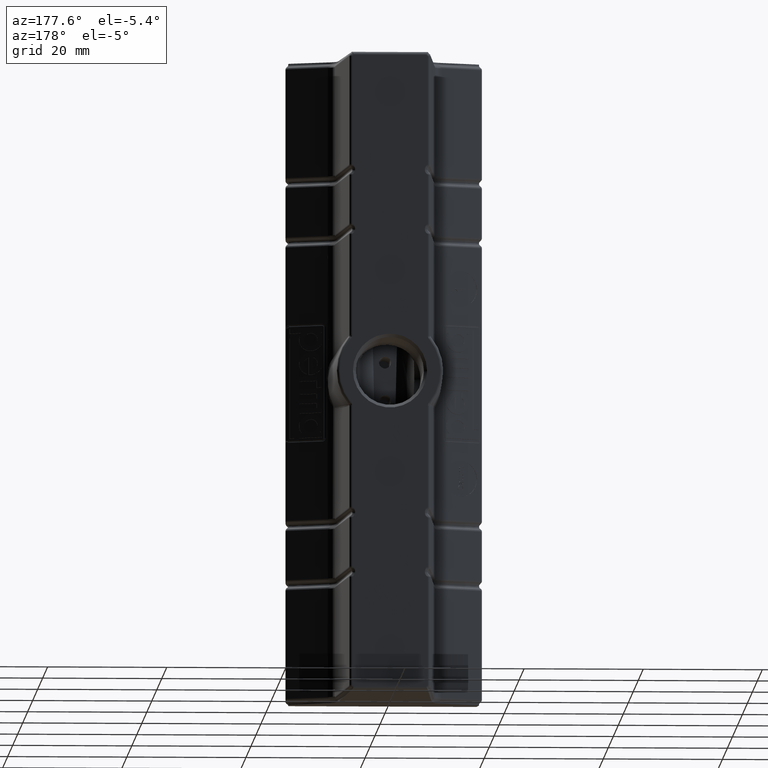
[diagram: clean part render]
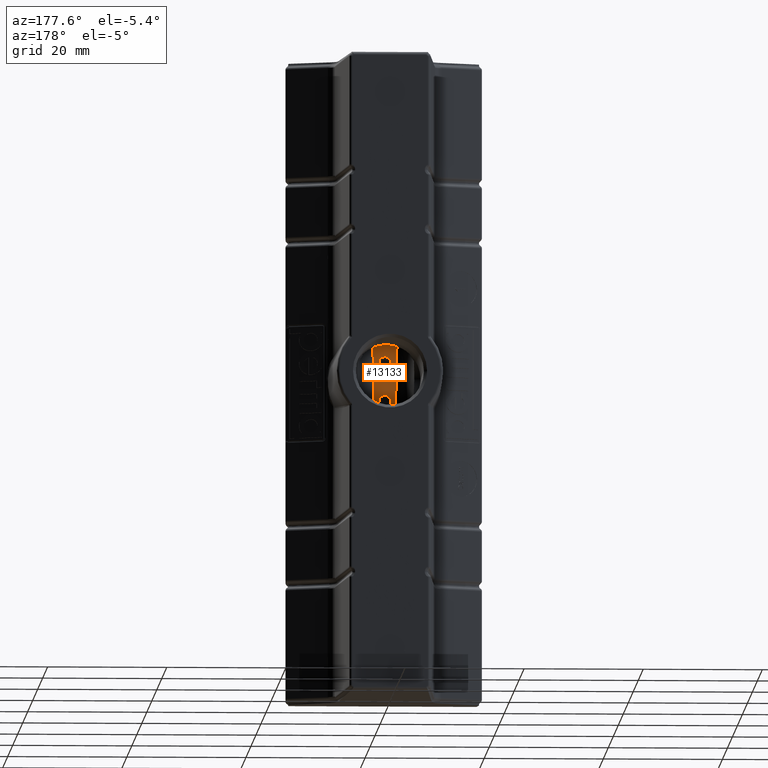
[diagram: same view with one face highlighted and labeled with its STEP entity id]
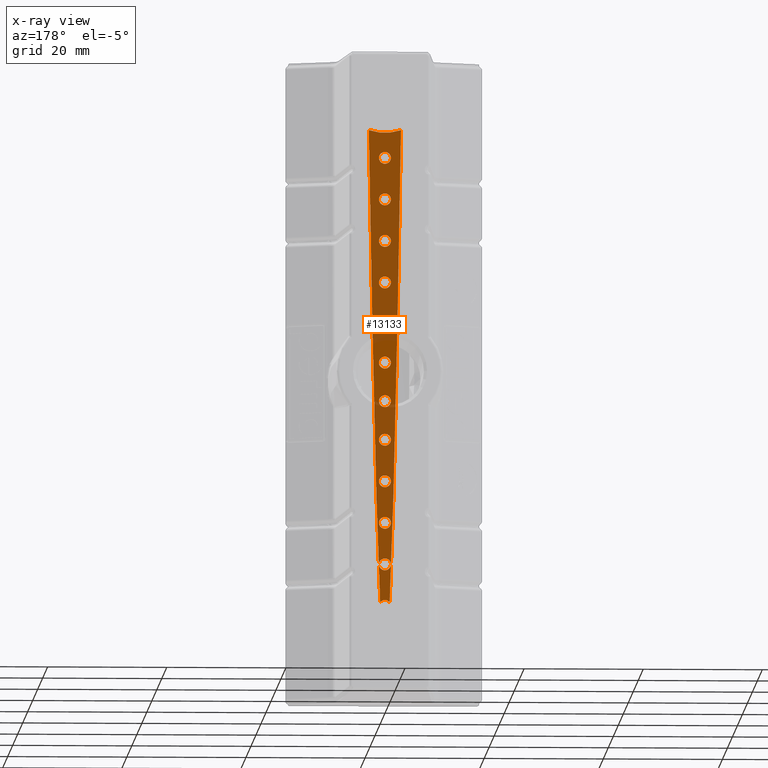
[diagram: x-ray of the same camera — body ghosted, the highlighted face saturated]
A machine part, auxiliary view. The second image highlights one B-rep face of the part: STEP entity #13133.
The next image is the same camera in x-ray: the body ghosted, the highlighted face saturated — about 87% of this face is hidden behind the body in this view.
In plain terms, the highlighted face is a freeform B-spline surface patch.
Its self-contained STEP definition (entity closure, byte-faithful):
#106=FACE_BOUND('',#4274,.T.);
#107=FACE_BOUND('',#4275,.T.);
#108=FACE_BOUND('',#4276,.T.);
#109=FACE_BOUND('',#4277,.T.);
#110=FACE_BOUND('',#4278,.T.);
#111=FACE_BOUND('',#4279,.T.);
#112=FACE_BOUND('',#4280,.T.);
#113=FACE_BOUND('',#4281,.T.);
#114=FACE_BOUND('',#4282,.T.);
#115=FACE_BOUND('',#4283,.T.);
#116=FACE_BOUND('',#4284,.T.);
#3244=B_SPLINE_SURFACE_WITH_KNOTS('',3,3,((#19105,#19106,#19107,#19108),
(#19109,#19110,#19111,#19112),(#19113,#19114,#19115,#19116),(#19117,#19118,
#19119,#19120),(#19121,#19122,#19123,#19124),(#19125,#19126,#19127,#19128),
(#19129,#19130,#19131,#19132),(#19133,#19134,#19135,#19136),(#19137,#19138,
#19139,#19140)),.UNSPECIFIED.,.F.,.F.,.F.,(4,2,1,2,4),(4,4),(-0.668885524988806,
-0.614590922970355,-0.422320528809498,-0.133914937568212,-0.0796203355692292),
(-4.91470557617484,3.00138386938293),.UNSPECIFIED.);
#3424=FACE_OUTER_BOUND('',#4273,.T.);
#4273=EDGE_LOOP('',(#9154,#9155,#9156,#9157));
#4274=EDGE_LOOP('',(#9158,#9159));
#4275=EDGE_LOOP('',(#9160,#9161));
#4276=EDGE_LOOP('',(#9162,#9163));
#4277=EDGE_LOOP('',(#9164,#9165));
#4278=EDGE_LOOP('',(#9166,#9167));
#4279=EDGE_LOOP('',(#9168,#9169));
#4280=EDGE_LOOP('',(#9170,#9171));
#4281=EDGE_LOOP('',(#9172,#9173));
#4282=EDGE_LOOP('',(#9174,#9175));
#4283=EDGE_LOOP('',(#9176,#9177));
#4284=EDGE_LOOP('',(#9178,#9179));
#5171=B_SPLINE_CURVE_WITH_KNOTS('',3,(#18638,#18639,#18640,#18641,#18642,
#18643),.UNSPECIFIED.,.F.,.F.,(4,2,4),(-6.43628515186023,-3.5724357533632,
0.),.UNSPECIFIED.);
#5182=B_SPLINE_CURVE_WITH_KNOTS('',3,(#18894,#18895,#18896,#18897,#18898,
#18899,#18900,#18901,#18902,#18903,#18904,#18905,#18906,#18907),
 .UNSPECIFIED.,.F.,.F.,(4,2,2,2,2,2,4),(0.000129135540459131,0.0288859059000774,
0.0523379772257178,0.0920367867757854,0.131736568248726,0.155146154921636,
0.183950883639238),.UNSPECIFIED.);
#5186=B_SPLINE_CURVE_WITH_KNOTS('',3,(#18962,#18963,#18964,#18965,#18966,
#18967,#18968,#18969,#18970,#18971,#18972,#18973),.UNSPECIFIED.,.F.,.F.,
(4,2,2,2,2,4),(0.31492656586351,0.331912794703362,0.358626447080021,0.364771979158051,
0.368026273551884,0.369527424134068),.UNSPECIFIED.);
#5187=B_SPLINE_CURVE_WITH_KNOTS('',3,(#18974,#18975,#18976,#18977,#18978,
#18979,#18980,#18981,#18982,#18983,#18984,#18985,#18986,#18987,#18988,#18989,
#18990,#18991,#18992,#18993,#18994,#18995,#18996,#18997,#18998,#18999,#19000,
#19001,#19002,#19003,#19004,#19005,#19006,#19007,#19008,#19009,#19010,#19011,
#19012,#19013,#19014,#19015,#19016,#19017,#19018,#19019,#19020,#19021,#19022,
#19023,#19024,#19025,#19026,#19027,#19028),.UNSPECIFIED.,.F.,.F.,(4,2,2,
2,2,2,2,2,2,2,2,3,2,2,2,2,2,2,2,2,2,2,2,2,2,2,4),(0.369527424134068,0.370689591398484,
0.373758596926151,0.379063241224892,0.400269315007901,0.427891396983653,
0.459686282088465,0.494452168347462,0.531940489423599,0.571597524668611,
0.596765565190039,0.629672771483584,0.66717886632327,0.67723312465542,0.681344661931072,
0.683868565972828,0.686581642877577,0.690222870487509,0.698282543253612,
0.718714759176265,0.747093434330144,0.779376384287763,0.814537476876038,
0.85243496729284,0.892028878089582,0.930097551928568,0.944599337347094),
 .UNSPECIFIED.);
#5188=B_SPLINE_CURVE_WITH_KNOTS('',3,(#19035,#19036,#19037,#19038,#19039,
#19040,#19041,#19042,#19043,#19044,#19045,#19046),.UNSPECIFIED.,.F.,.F.,
(4,2,2,2,2,4),(0.314926565865022,0.331912794703058,0.358626447081392,0.364771979159573,
0.36802627355344,0.36952742413569),.UNSPECIFIED.);
#5189=B_SPLINE_CURVE_WITH_KNOTS('',3,(#19047,#19048,#19049,#19050,#19051,
#19052,#19053,#19054,#19055,#19056,#19057,#19058,#19059,#19060,#19061,#19062,
#19063,#19064,#19065,#19066,#19067,#19068,#19069,#19070,#19071,#19072,#19073,
#19074,#19075,#19076,#19077,#19078,#19079,#19080,#19081,#19082,#19083,#19084,
#19085,#19086,#19087,#19088,#19089,#19090,#19091,#19092,#19093,#19094,#19095,
#19096,#19097,#19098,#19099,#19100,#19101),.UNSPECIFIED.,.F.,.F.,(4,2,2,
2,2,2,2,2,2,2,2,3,2,2,2,2,2,2,2,2,2,2,2,2,2,2,4),(0.36952742413569,0.370689591400034,
0.373758596927672,0.379063241226315,0.400269315008097,0.427891396983563,
0.459686282088209,0.494452168347077,0.53194048942307,0.571597524668125,
0.596765565190216,0.629672771484578,0.667178866323645,0.6772331246568,0.681344661932636,
0.683868565974418,0.686581642879142,0.69022287048897,0.698282543254404,
0.718714759177071,0.747093434330832,0.779376384288407,0.814537476876661,
0.852434967293447,0.892028878090318,0.930097551929532,0.9445993373496),
 .UNSPECIFIED.);
#5190=B_SPLINE_CURVE_WITH_KNOTS('',3,(#19142,#19143,#19144,#19145,#19146,
#19147),.UNSPECIFIED.,.F.,.F.,(4,2,4),(-0.623632676802121,-0.312872725892016,
-2.06361594479176E-11),.UNSPECIFIED.);
#5191=B_SPLINE_CURVE_WITH_KNOTS('',3,(#19148,#19149,#19150,#19151,#19152,
#19153),.UNSPECIFIED.,.F.,.F.,(4,2,4),(-7.57390352824831,-3.34783002170509,
-0.000132779309576828),.UNSPECIFIED.);
#5192=B_SPLINE_CURVE_WITH_KNOTS('',3,(#19157,#19158,#19159,#19160,#19161,
#19162,#19163,#19164,#19165,#19166,#19167,#19168,#19169,#19170,#19171,#19172,
#19173,#19174,#19175,#19176,#19177,#19178,#19179,#19180,#19181,#19182,#19183,
#19184,#19185,#19186,#19187,#19188,#19189,#19190,#19191,#19192,#19193,#19194,
#19195,#19196,#19197,#19198,#19199,#19200,#19201,#19202,#19203,#19204,#19205,
#19206,#19207,#19208),.UNSPECIFIED.,.F.,.F.,(4,2,2,2,2,2,2,2,2,2,2,2,2,
2,2,2,2,2,2,2,2,2,2,2,2,4),(-0.575262824770504,-0.57258747757127,-0.569125282749051,
-0.561014998199783,-0.522121153325466,-0.492388815436183,-0.4568613574396,
-0.417157526710011,-0.380082442444415,-0.345711660876371,-0.314406838586983,
-0.287572993505301,-0.269704819012437,-0.264525228656572,-0.261452326846859,
-0.258786873548675,-0.255531521734119,-0.249387067148007,-0.226789299450067,
-0.198581127794724,-0.166410044279679,-0.131339768368268,-0.0935344859537307,
-0.0539257034426819,-0.0304567651071938,-9.99998754469544E-7),
 .UNSPECIFIED.);
#5193=B_SPLINE_CURVE_WITH_KNOTS('',3,(#19212,#19213,#19214,#19215,#19216,
#19217,#19218,#19219,#19220,#19221,#19222,#19223,#19224,#19225,#19226,#19227,
#19228,#19229,#19230,#19231,#19232,#19233,#19234,#19235,#19236,#19237,#19238,
#19239,#19240,#19241,#19242,#19243,#19244,#19245,#19246,#19247,#19248,#19249,
#19250,#19251,#19252,#19253,#19254,#19255,#19256,#19257,#19258,#19259,#19260,
#19261,#19262,#19263),.UNSPECIFIED.,.F.,.F.,(4,2,2,2,2,2,2,2,2,2,2,2,2,
2,2,2,2,2,2,2,2,2,2,2,2,4),(-0.575262824765911,-0.572587477566629,-0.569125282744301,
-0.561014998194703,-0.522121153321284,-0.492388815432472,-0.456861357436218,
-0.417157526707187,-0.380082442442152,-0.34571166087463,-0.314406838585755,
-0.287572993504544,-0.269704819012187,-0.264525228656435,-0.261452326846759,
-0.258786873548593,-0.255531521734051,-0.249387067147916,-0.226789299449974,
-0.198581127794619,-0.16641004427957,-0.131339768368166,-0.0935344859536361,
-0.0539257034425975,-0.0304567651071444,-9.99998754469544E-7),
 .UNSPECIFIED.);
#5194=B_SPLINE_CURVE_WITH_KNOTS('',3,(#19267,#19268,#19269,#19270,#19271,
#19272,#19273,#19274,#19275,#19276,#19277,#19278,#19279,#19280,#19281,#19282,
#19283,#19284,#19285,#19286,#19287,#19288,#19289,#19290,#19291,#19292,#19293,
#19294,#19295,#19296,#19297,#19298,#19299,#19300,#19301,#19302,#19303,#19304,
#19305,#19306,#19307,#19308,#19309,#19310,#19311,#19312,#19313,#19314,#19315,
#19316,#19317,#19318),.UNSPECIFIED.,.F.,.F.,(4,2,2,2,2,2,2,2,2,2,2,2,2,
2,2,2,2,2,2,2,2,2,2,2,2,4),(2.83571786026464E-6,0.0302679358841954,0.0536095030950901,
0.0932126676421917,0.131058911548664,0.166168321904581,0.198383986141921,
0.226658225828832,0.249373261603289,0.25564010411284,0.258920369056703,
0.261585365277648,0.26463468274741,0.269851698782751,0.287614029657853,
0.314405726451024,0.345685224270276,0.380041688361379,0.417111998168416,
0.456815718069536,0.49248121209522,0.522016059551347,0.560674833897351,
0.568983865003657,0.572584148776681,0.575336678234126),.UNSPECIFIED.);
#5195=B_SPLINE_CURVE_WITH_KNOTS('',3,(#19322,#19323,#19324,#19325,#19326,
#19327,#19328,#19329,#19330,#19331,#19332,#19333,#19334,#19335,#19336,#19337,
#19338,#19339,#19340,#19341,#19342,#19343,#19344,#19345,#19346,#19347,#19348,
#19349,#19350,#19351,#19352,#19353,#19354,#19355,#19356,#19357,#19358,#19359,
#19360,#19361,#19362,#19363,#19364,#19365,#19366,#19367,#19368,#19369,#19370,
#19371,#19372,#19373),.UNSPECIFIED.,.F.,.F.,(4,2,2,2,2,2,2,2,2,2,2,2,2,
2,2,2,2,2,2,2,2,2,2,2,2,4),(2.83571785544392E-6,0.0302679358841765,0.0536095030950759,
0.0932126676422121,0.13105891154872,0.166168321904669,0.198383986142028,
0.226658225828964,0.249373261603448,0.25564010411301,0.258920369056874,
0.261585365277803,0.264634682747534,0.26985169878282,0.2876140296577,0.314405726450609,
0.34568522426957,0.380041688360355,0.417111998167059,0.456815718067834,
0.492481212093244,0.522016059549093,0.560674833894658,0.568983865001002,
0.572584148774032,0.575336678231485),.UNSPECIFIED.);
#5196=B_SPLINE_CURVE_WITH_KNOTS('',3,(#19377,#19378,#19379,#19380,#19381,
#19382,#19383,#19384,#19385,#19386,#19387,#19388,#19389,#19390,#19391,#19392,
#19393,#19394,#19395,#19396,#19397,#19398,#19399,#19400,#19401,#19402,#19403,
#19404,#19405,#19406,#19407,#19408,#19409,#19410,#19411,#19412,#19413,#19414,
#19415,#19416,#19417,#19418,#19419,#19420,#19421,#19422,#19423,#19424,#19425,
#19426,#19427,#19428),.UNSPECIFIED.,.F.,.F.,(4,2,2,2,2,2,2,2,2,2,2,2,2,
2,2,2,2,2,2,2,2,2,2,2,2,4),(2.83571785867552E-6,0.0302679358841414,0.0536095030949981,
0.0932126676420926,0.131058911548569,0.166168321904493,0.198383986141837,
0.226658225828756,0.249373261603217,0.25564010411281,0.258920369056679,
0.261585365277616,0.264634682747364,0.269851698782682,0.287614029657597,
0.314405726450675,0.345685224269849,0.380041688360866,0.417111998167825,
0.456815718068895,0.492481212094636,0.522016059550691,0.560674833896418,
0.56898386500299,0.572584148776113,0.575336678233608),.UNSPECIFIED.);
#5197=B_SPLINE_CURVE_WITH_KNOTS('',3,(#19432,#19433,#19434,#19435,#19436,
#19437,#19438,#19439,#19440,#19441,#19442,#19443,#19444,#19445,#19446,#19447,
#19448,#19449,#19450,#19451,#19452,#19453,#19454,#19455,#19456,#19457,#19458,
#19459,#19460,#19461,#19462,#19463,#19464,#19465,#19466,#19467,#19468,#19469,
#19470,#19471,#19472,#19473,#19474,#19475,#19476,#19477,#19478,#19479,#19480,
#19481,#19482,#19483),.UNSPECIFIED.,.F.,.F.,(4,2,2,2,2,2,2,2,2,2,2,2,2,
2,2,2,2,2,2,2,2,2,2,2,2,4),(2.83571785668531E-6,0.0302679358841343,0.0536095030950286,
0.0932126676422129,0.131058911548749,0.166168321904712,0.198383986142123,
0.226658225829099,0.249373261603597,0.255640104113205,0.258920369057075,
0.261585365278017,0.264634682747775,0.269851698783105,0.28761402965802,
0.314405726451174,0.345685224270436,0.380041688361545,0.417111998168623,
0.456815718069834,0.492481212095724,0.522016059551841,0.56067483389759,
0.568983865004291,0.572584148777451,0.575336678234973),.UNSPECIFIED.);
#5198=B_SPLINE_CURVE_WITH_KNOTS('',3,(#19487,#19488,#19489,#19490,#19491,
#19492,#19493,#19494,#19495,#19496,#19497,#19498,#19499,#19500,#19501,#19502,
#19503,#19504,#19505,#19506,#19507,#19508,#19509,#19510,#19511,#19512,#19513,
#19514,#19515,#19516,#19517,#19518,#19519,#19520,#19521,#19522,#19523,#19524,
#19525,#19526,#19527,#19528,#19529,#19530,#19531,#19532,#19533,#19534,#19535,
#19536,#19537,#19538),.UNSPECIFIED.,.F.,.F.,(4,2,2,2,2,2,2,2,2,2,2,2,2,
2,2,2,2,2,2,2,2,2,2,2,2,4),(2.83571785859996E-6,0.0302679358840651,0.0536095030948689,
0.0932126676419648,0.131058911548449,0.166168321904371,0.198383986141721,
0.226658225828661,0.249373261603137,0.255640104112764,0.258920369056637,
0.261585365277564,0.264634682747297,0.269851698782595,0.287614029657286,
0.314405726450314,0.345685224269482,0.380041688360503,0.417111998167452,
0.456815718068553,0.492481212094507,0.522016059550559,0.560674833895987,
0.568983865003014,0.572584148776288,0.57533667823387),.UNSPECIFIED.);
#5199=B_SPLINE_CURVE_WITH_KNOTS('',3,(#19542,#19543,#19544,#19545,#19546,
#19547,#19548,#19549,#19550,#19551,#19552,#19553,#19554,#19555,#19556,#19557,
#19558,#19559,#19560,#19561,#19562,#19563,#19564,#19565,#19566,#19567,#19568,
#19569,#19570,#19571,#19572,#19573,#19574,#19575,#19576,#19577,#19578,#19579,
#19580,#19581,#19582,#19583,#19584,#19585,#19586,#19587,#19588,#19589,#19590,
#19591,#19592,#19593),.UNSPECIFIED.,.F.,.F.,(4,2,2,2,2,2,2,2,2,2,2,2,2,
2,2,2,2,2,2,2,2,2,2,2,2,4),(-0.575262824773182,-0.57258747757395,-0.569125282751783,
-0.561014998202759,-0.522121153327908,-0.492388815438356,-0.456861357441623,
-0.417157526711689,-0.380082442445721,-0.345711660877371,-0.314406838587705,
-0.287572993505762,-0.269704819012571,-0.264525228656666,-0.261452326846936,
-0.258786873548743,-0.255531521734192,-0.249387067148121,-0.226789299450175,
-0.198581127794854,-0.166410044279841,-0.131339768368398,-0.0935344859538282,
-0.0539257034427645,-0.0304567651072433,-9.99998755579767E-7),
 .UNSPECIFIED.);
#5200=B_SPLINE_CURVE_WITH_KNOTS('',3,(#19597,#19598,#19599,#19600,#19601,
#19602,#19603,#19604,#19605,#19606,#19607,#19608,#19609,#19610,#19611,#19612,
#19613,#19614,#19615,#19616,#19617,#19618,#19619,#19620,#19621,#19622,#19623,
#19624,#19625,#19626,#19627,#19628,#19629,#19630,#19631,#19632,#19633,#19634,
#19635,#19636,#19637,#19638,#19639,#19640,#19641,#19642,#19643,#19644,#19645,
#19646,#19647,#19648),.UNSPECIFIED.,.F.,.F.,(4,2,2,2,2,2,2,2,2,2,2,2,2,
2,2,2,2,2,2,2,2,2,2,2,2,4),(-0.575262824769339,-0.572587477570252,-0.569125282748313,
-0.561014998199962,-0.522121153325121,-0.492388815435859,-0.456861357439729,
-0.417157526710258,-0.3800824424447,-0.345711660876718,-0.31440683858732,
-0.287572993505577,-0.269704819012262,-0.264525228656372,-0.261452326846642,
-0.258786873548453,-0.255531521733921,-0.249387067147916,-0.226789299450004,
-0.198581127794723,-0.16641004427972,-0.131339768368352,-0.0935344859538767,
-0.0539257034428821,-0.030456765107325,-9.999987552467E-7),
 .UNSPECIFIED.);
#5553=CIRCLE('',#14108,0.999991138461016);
#5554=CIRCLE('',#14109,0.999991138461026);
#5555=CIRCLE('',#14110,0.99999032114845);
#5556=CIRCLE('',#14111,0.999990321148443);
#5557=CIRCLE('',#14112,0.999990321148001);
#5558=CIRCLE('',#14113,0.999990321147849);
#5559=CIRCLE('',#14114,0.999990321148084);
#5560=CIRCLE('',#14115,0.99999113846129);
#5561=CIRCLE('',#14116,0.999991138460986);
#5876=VERTEX_POINT('',#18635);
#5877=VERTEX_POINT('',#18637);
#5900=VERTEX_POINT('',#18893);
#5905=VERTEX_POINT('',#18960);
#5906=VERTEX_POINT('',#18961);
#5908=VERTEX_POINT('',#19033);
#5909=VERTEX_POINT('',#19034);
#5911=VERTEX_POINT('',#19141);
#5912=VERTEX_POINT('',#19154);
#5913=VERTEX_POINT('',#19155);
#5914=VERTEX_POINT('',#19209);
#5915=VERTEX_POINT('',#19210);
#5916=VERTEX_POINT('',#19264);
#5917=VERTEX_POINT('',#19265);
#5918=VERTEX_POINT('',#19319);
#5919=VERTEX_POINT('',#19320);
#5920=VERTEX_POINT('',#19374);
#5921=VERTEX_POINT('',#19375);
#5922=VERTEX_POINT('',#19429);
#5923=VERTEX_POINT('',#19430);
#5924=VERTEX_POINT('',#19484);
#5925=VERTEX_POINT('',#19485);
#5926=VERTEX_POINT('',#19539);
#5927=VERTEX_POINT('',#19540);
#5928=VERTEX_POINT('',#19594);
#5929=VERTEX_POINT('',#19595);
#7079=EDGE_CURVE('',#5876,#5877,#5171,.F.);
#7107=EDGE_CURVE('',#5900,#5877,#5182,.T.);
#7117=EDGE_CURVE('',#5905,#5906,#5186,.T.);
#7118=EDGE_CURVE('',#5906,#5905,#5187,.T.);
#7121=EDGE_CURVE('',#5908,#5909,#5188,.T.);
#7122=EDGE_CURVE('',#5909,#5908,#5189,.T.);
#7125=EDGE_CURVE('',#5911,#5876,#5190,.T.);
#7126=EDGE_CURVE('',#5911,#5900,#5191,.T.);
#7127=EDGE_CURVE('',#5912,#5913,#5553,.T.);
#7128=EDGE_CURVE('',#5913,#5912,#5192,.T.);
#7129=EDGE_CURVE('',#5914,#5915,#5554,.T.);
#7130=EDGE_CURVE('',#5915,#5914,#5193,.T.);
#7131=EDGE_CURVE('',#5916,#5917,#5555,.F.);
#7132=EDGE_CURVE('',#5917,#5916,#5194,.F.);
#7133=EDGE_CURVE('',#5918,#5919,#5556,.F.);
#7134=EDGE_CURVE('',#5919,#5918,#5195,.F.);
#7135=EDGE_CURVE('',#5920,#5921,#5557,.F.);
#7136=EDGE_CURVE('',#5921,#5920,#5196,.F.);
#7137=EDGE_CURVE('',#5922,#5923,#5558,.F.);
#7138=EDGE_CURVE('',#5923,#5922,#5197,.F.);
#7139=EDGE_CURVE('',#5924,#5925,#5559,.F.);
#7140=EDGE_CURVE('',#5925,#5924,#5198,.F.);
#7141=EDGE_CURVE('',#5926,#5927,#5560,.T.);
#7142=EDGE_CURVE('',#5927,#5926,#5199,.T.);
#7143=EDGE_CURVE('',#5928,#5929,#5561,.T.);
#7144=EDGE_CURVE('',#5929,#5928,#5200,.T.);
#9154=ORIENTED_EDGE('',*,*,#7107,.T.);
#9155=ORIENTED_EDGE('',*,*,#7079,.F.);
#9156=ORIENTED_EDGE('',*,*,#7125,.F.);
#9157=ORIENTED_EDGE('',*,*,#7126,.T.);
#9158=ORIENTED_EDGE('',*,*,#7127,.F.);
#9159=ORIENTED_EDGE('',*,*,#7128,.F.);
#9160=ORIENTED_EDGE('',*,*,#7129,.F.);
#9161=ORIENTED_EDGE('',*,*,#7130,.F.);
#9162=ORIENTED_EDGE('',*,*,#7131,.F.);
#9163=ORIENTED_EDGE('',*,*,#7132,.F.);
#9164=ORIENTED_EDGE('',*,*,#7133,.F.);
#9165=ORIENTED_EDGE('',*,*,#7134,.F.);
#9166=ORIENTED_EDGE('',*,*,#7135,.F.);
#9167=ORIENTED_EDGE('',*,*,#7136,.F.);
#9168=ORIENTED_EDGE('',*,*,#7137,.F.);
#9169=ORIENTED_EDGE('',*,*,#7138,.F.);
#9170=ORIENTED_EDGE('',*,*,#7139,.F.);
#9171=ORIENTED_EDGE('',*,*,#7140,.F.);
#9172=ORIENTED_EDGE('',*,*,#7141,.F.);
#9173=ORIENTED_EDGE('',*,*,#7142,.F.);
#9174=ORIENTED_EDGE('',*,*,#7143,.F.);
#9175=ORIENTED_EDGE('',*,*,#7144,.F.);
#9176=ORIENTED_EDGE('',*,*,#7121,.T.);
#9177=ORIENTED_EDGE('',*,*,#7122,.T.);
#9178=ORIENTED_EDGE('',*,*,#7117,.T.);
#9179=ORIENTED_EDGE('',*,*,#7118,.T.);
#13133=ADVANCED_FACE('',(#3424,#106,#107,#108,#109,#110,#111,#112,#113,
#114,#115,#116),#3244,.F.);
#14108=AXIS2_PLACEMENT_3D('',#19156,#15276,#15277);
#14109=AXIS2_PLACEMENT_3D('',#19211,#15278,#15279);
#14110=AXIS2_PLACEMENT_3D('',#19266,#15280,#15281);
#14111=AXIS2_PLACEMENT_3D('',#19321,#15282,#15283);
#14112=AXIS2_PLACEMENT_3D('',#19376,#15284,#15285);
#14113=AXIS2_PLACEMENT_3D('',#19431,#15286,#15287);
#14114=AXIS2_PLACEMENT_3D('',#19486,#15288,#15289);
#14115=AXIS2_PLACEMENT_3D('',#19541,#15290,#15291);
#14116=AXIS2_PLACEMENT_3D('',#19596,#15292,#15293);
#15276=DIRECTION('center_axis',(-0.00102539718150033,0.999999474150029,
1.61333974164467E-5));
#15277=DIRECTION('ref_axis',(-0.999999474277428,-0.0010253972191558,2.32595903122164E-6));
#15278=DIRECTION('center_axis',(-0.00102539718149931,0.999999474150029,
1.61333974167607E-5));
#15279=DIRECTION('ref_axis',(-0.999999474277428,-0.00102539721915579,2.32595903122162E-6));
#15280=DIRECTION('center_axis',(-0.00104142964946195,-0.999999457573854,
1.66217806179361E-5));
#15281=DIRECTION('ref_axis',(0.856485737389751,-0.000883390457020567,0.516169934487892));
#15282=DIRECTION('center_axis',(-0.00104142964946152,-0.999999457573854,
1.662178061807E-5));
#15283=DIRECTION('ref_axis',(0.856485737389757,-0.000883390457020573,0.516169934487882));
#15284=DIRECTION('center_axis',(-0.00104142964946055,-0.999999457573854,
1.66217806183077E-5));
#15285=DIRECTION('ref_axis',(0.85648573738968,-0.000883390457018743,0.51616993448801));
#15286=DIRECTION('center_axis',(-0.00104142964946048,-0.999999457573854,
1.66217806183563E-5));
#15287=DIRECTION('ref_axis',(0.856485737389669,-0.000883390457018877,0.516169934488029));
#15288=DIRECTION('center_axis',(-0.00104142964946154,-0.999999457573854,
1.66217806180323E-5));
#15289=DIRECTION('ref_axis',(0.856485737389688,-0.00088339045702089,0.516169934487996));
#15290=DIRECTION('center_axis',(-0.00102539718149965,0.999999474150029,
1.61333974166485E-5));
#15291=DIRECTION('ref_axis',(-0.999999474277428,-0.00102539721915552,2.32595898681169E-6));
#15292=DIRECTION('center_axis',(-0.00102539718149925,0.999999474150029,
1.61333974167524E-5));
#15293=DIRECTION('ref_axis',(-0.999999474277428,-0.00102539721915583,2.32595904010358E-6));
#18635=CARTESIAN_POINT('',(-2.69883795977264,-17.8988437354553,76.1724788875142));
#18637=CARTESIAN_POINT('',(-0.793774572912388,-17.895322333237,-3.391787496395));
#18638=CARTESIAN_POINT('Ctrl Pts',(-0.793779849554785,-17.8953218968575,
-3.39178335753249));
#18639=CARTESIAN_POINT('Ctrl Pts',(-1.3416249798492,-17.8958325547857,7.82259835822321));
#18640=CARTESIAN_POINT('Ctrl Pts',(-1.82428243400855,-17.8968437722309,
29.8881819778286));
#18641=CARTESIAN_POINT('Ctrl Pts',(-2.27130996126716,-17.897830997151,51.4016979345296));
#18642=CARTESIAN_POINT('Ctrl Pts',(-2.50089462631609,-17.8983846914212,
64.2660034806544));
#18643=CARTESIAN_POINT('Ctrl Pts',(-2.69883795977262,-17.8988437354552,
76.1724788875142));
#18893=CARTESIAN_POINT('',(0.793858603065691,-17.895304826718,-3.39189760866419));
#18894=CARTESIAN_POINT('Ctrl Pts',(0.793858603065691,-17.895304826718,-3.39189760866419));
#18895=CARTESIAN_POINT('Ctrl Pts',(0.735571118712017,-17.8952498399946,
-3.31580512561346));
#18896=CARTESIAN_POINT('Ctrl Pts',(0.666643457181007,-17.8951908476093,
-3.24848496230549));
#18897=CARTESIAN_POINT('Ctrl Pts',(0.526028950766365,-17.8950928381611,
-3.1459480997965));
#18898=CARTESIAN_POINT('Ctrl Pts',(0.457681676144508,-17.8950525579489,
-3.10745387285315));
#18899=CARTESIAN_POINT('Ctrl Pts',(0.263453562107581,-17.89496559057,-3.02629404965642));
#18900=CARTESIAN_POINT('Ctrl Pts',(0.132433613065891,-17.8949356678711,
-3.00001380057887));
#18901=CARTESIAN_POINT('Ctrl Pts',(-0.132228355574556,-17.8949417837455,
-2.99998620993449));
#18902=CARTESIAN_POINT('Ctrl Pts',(-0.263256925041105,-17.8949776154306,
-3.02624042721531));
#18903=CARTESIAN_POINT('Ctrl Pts',(-0.457373485473385,-17.8950693475649,
-3.10730829548556));
#18904=CARTESIAN_POINT('Ctrl Pts',(-0.525611870675888,-17.8951103278795,
-3.14570429852923));
#18905=CARTESIAN_POINT('Ctrl Pts',(-0.666304904741409,-17.8952088603305,
-3.24816438126879));
#18906=CARTESIAN_POINT('Ctrl Pts',(-0.735376360961155,-17.8952674581076,
-3.31557277743585));
#18907=CARTESIAN_POINT('Ctrl Pts',(-0.79377430452879,-17.8953218916889,
-3.39178757536569));
#18960=CARTESIAN_POINT('',(-0.854998959460409,-17.8953810762754,3.518629713119));
#18961=CARTESIAN_POINT('',(-0.99999999999999,-17.8955380718778,3.000000000008));
#18962=CARTESIAN_POINT('Ctrl Pts',(-0.854998959460408,-17.8953810762754,
3.518629713119));
#18963=CARTESIAN_POINT('Ctrl Pts',(-0.884274711477835,-17.8954103876754,
3.4703664978046));
#18964=CARTESIAN_POINT('Ctrl Pts',(-0.909456312511936,-17.8954370275883,
3.41963689786942));
#18965=CARTESIAN_POINT('Ctrl Pts',(-0.962910926209493,-17.8954950717214,
3.28413315501443));
#18966=CARTESIAN_POINT('Ctrl Pts',(-0.98437784139956,-17.895519972286,3.19730526680857));
#18967=CARTESIAN_POINT('Ctrl Pts',(-0.996293485228019,-17.8955337625686,
3.08842471935876));
#18968=CARTESIAN_POINT('Ctrl Pts',(-0.997895774322802,-17.8955356246027,
3.06799752311214));
#18969=CARTESIAN_POINT('Ctrl Pts',(-0.999385194754837,-17.8955373563368,
3.03670019017852));
#18970=CARTESIAN_POINT('Ctrl Pts',(-0.999724502130115,-17.8955377512392,
3.02585713239142));
#18971=CARTESIAN_POINT('Ctrl Pts',(-0.999962444090585,-17.8955380281622,
3.01000743590366));
#18972=CARTESIAN_POINT('Ctrl Pts',(-0.99999999999999,-17.8955380718778,
3.00500372591274));
#18973=CARTESIAN_POINT('Ctrl Pts',(-0.99999999999999,-17.8955380718778,
3.000000000008));
#18974=CARTESIAN_POINT('Ctrl Pts',(-0.99999999999999,-17.8955380718778,
3.000000000008));
#18975=CARTESIAN_POINT('Ctrl Pts',(-0.99999999999999,-17.8955380718778,
2.99612619379854));
#18976=CARTESIAN_POINT('Ctrl Pts',(-0.999977490438175,-17.8955380456769,
2.99225237805095));
#18977=CARTESIAN_POINT('Ctrl Pts',(-0.999813585375742,-17.8955378549117,
2.97814942188131));
#18978=CARTESIAN_POINT('Ctrl Pts',(-0.999537737469508,-17.8955375338413,
2.96792252128354));
#18979=CARTESIAN_POINT('Ctrl Pts',(-0.998357099207122,-17.8955361608149,
2.9400353372614));
#18980=CARTESIAN_POINT('Ctrl Pts',(-0.997140737540021,-17.8955347468151,
2.92239196010176));
#18981=CARTESIAN_POINT('Ctrl Pts',(-0.988727132020092,-17.8955249964519,
2.834424344933));
#18982=CARTESIAN_POINT('Ctrl Pts',(-0.974555059729816,-17.895508560916,
2.76497005682277));
#18983=CARTESIAN_POINT('Ctrl Pts',(-0.925335110796411,-17.8954538485388,
2.60983019069196));
#18984=CARTESIAN_POINT('Ctrl Pts',(-0.885503399702881,-17.8954106936399,
2.52633210500845));
#18985=CARTESIAN_POINT('Ctrl Pts',(-0.776466907097936,-17.8953040065852,
2.36099176572156));
#18986=CARTESIAN_POINT('Ctrl Pts',(-0.70442370191283,-17.8952392232755,
2.28235131909619));
#18987=CARTESIAN_POINT('Ctrl Pts',(-0.530588094327752,-17.8951110657825,
2.144485008827));
#18988=CARTESIAN_POINT('Ctrl Pts',(-0.427960366310449,-17.8950496556231,
2.08880323014507));
#18989=CARTESIAN_POINT('Ctrl Pts',(-0.199622787168232,-17.8949590811928,
2.01219130986503));
#18990=CARTESIAN_POINT('Ctrl Pts',(-0.0747445084037106,-17.8949344323902,
1.99499824660394));
#18991=CARTESIAN_POINT('Ctrl Pts',(0.182084250455491,-17.8949439895903,
2.00787120320435));
#18992=CARTESIAN_POINT('Ctrl Pts',(0.3114955680594,-17.8949817309855,2.04060189140658));
#18993=CARTESIAN_POINT('Ctrl Pts',(0.506500561883212,-17.8950798801452,
2.13368868691339));
#18994=CARTESIAN_POINT('Ctrl Pts',(0.577362403021729,-17.8951261918861,
2.17921332420578));
#18995=CARTESIAN_POINT('Ctrl Pts',(0.725832105204476,-17.8952391392035,
2.30343715443468));
#18996=CARTESIAN_POINT('Ctrl Pts',(0.797807698778613,-17.8953066474055,
2.38719096010777));
#18997=CARTESIAN_POINT('Ctrl Pts',(0.854742831398464,-17.8953644592077,
2.4809482760219));
#18998=CARTESIAN_POINT('Ctrl Pts',(0.919634833007518,-17.8954303503963,
2.58780848017358));
#18999=CARTESIAN_POINT('Ctrl Pts',(0.96391551176704,-17.895482022912,2.70589633570632));
#19000=CARTESIAN_POINT('Ctrl Pts',(0.991012721811528,-17.8955136547601,
2.86209791003954));
#19001=CARTESIAN_POINT('Ctrl Pts',(0.995077443225876,-17.8955184515356,
2.89538602755058));
#19002=CARTESIAN_POINT('Ctrl Pts',(0.998438740938063,-17.8955224223482,
2.94248555809675));
#19003=CARTESIAN_POINT('Ctrl Pts',(0.999133203473239,-17.8955232442414,
2.95617452621395));
#19004=CARTESIAN_POINT('Ctrl Pts',(0.99979954711174,-17.8955240330069,2.97828262464131));
#19005=CARTESIAN_POINT('Ctrl Pts',(0.999946872259838,-17.89552420749,2.98669468318651));
#19006=CARTESIAN_POINT('Ctrl Pts',(1.00003227701457,-17.8955243086288,3.00415107770055));
#19007=CARTESIAN_POINT('Ctrl Pts',(0.999953841566058,-17.8955242157208,
3.01319474344736));
#19008=CARTESIAN_POINT('Ctrl Pts',(0.99948285844807,-17.8955236580962,3.03437052179687));
#19009=CARTESIAN_POINT('Ctrl Pts',(0.998992070826493,-17.8955230770654,
3.04649902716655));
#19010=CARTESIAN_POINT('Ctrl Pts',(0.99670588708628,-17.8955203741772,3.0854349685134));
#19011=CARTESIAN_POINT('Ctrl Pts',(0.994051007706218,-17.8955172376696,
3.11218000383729));
#19012=CARTESIAN_POINT('Ctrl Pts',(0.980870129256982,-17.8955017746941,
3.20623386167785));
#19013=CARTESIAN_POINT('Ctrl Pts',(0.964551896688716,-17.8954827088505,
3.27254037175349));
#19014=CARTESIAN_POINT('Ctrl Pts',(0.909774399691172,-17.8954215262785,
3.42574507078214));
#19015=CARTESIAN_POINT('Ctrl Pts',(0.865448335626921,-17.895373577613,3.50985046857542));
#19016=CARTESIAN_POINT('Ctrl Pts',(0.74686091631615,-17.8952594375543,3.67363094094786));
#19017=CARTESIAN_POINT('Ctrl Pts',(0.670093682921329,-17.895192580784,3.75003621855663));
#19018=CARTESIAN_POINT('Ctrl Pts',(0.487380259368426,-17.8950666858973,
3.88102052911155));
#19019=CARTESIAN_POINT('Ctrl Pts',(0.380857165983347,-17.8950103400534,
3.93203246323352));
#19020=CARTESIAN_POINT('Ctrl Pts',(0.1462329663328,-17.894939191647,3.99728326807242));
#19021=CARTESIAN_POINT('Ctrl Pts',(0.0192082499489199,-17.8949290887126,
4.00776437795851));
#19022=CARTESIAN_POINT('Ctrl Pts',(-0.237630147036398,-17.8949677249411,
3.98028085567207));
#19023=CARTESIAN_POINT('Ctrl Pts',(-0.364791687184139,-17.8950183552995,
3.94039654569177));
#19024=CARTESIAN_POINT('Ctrl Pts',(-0.591819002201463,-17.8951497472617,
3.81599801058322));
#19025=CARTESIAN_POINT('Ctrl Pts',(-0.690486360926106,-17.8952279572338,
3.7343916316768));
#19026=CARTESIAN_POINT('Ctrl Pts',(-0.802027258307139,-17.8953290878904,
3.59924032131844));
#19027=CARTESIAN_POINT('Ctrl Pts',(-0.830005143721471,-17.8953560520257,
3.55983384375307));
#19028=CARTESIAN_POINT('Ctrl Pts',(-0.854998959460408,-17.8953810762754,
3.518629713119));
#19033=CARTESIAN_POINT('',(-0.854998959460411,-17.8953810762754,10.518629713119));
#19034=CARTESIAN_POINT('',(-0.99999999999999,-17.8955380718778,10.000000000008));
#19035=CARTESIAN_POINT('Ctrl Pts',(-0.854998959460412,-17.8953810762754,
10.518629713119));
#19036=CARTESIAN_POINT('Ctrl Pts',(-0.884274711474641,-17.8954103876754,
10.4703664978098));
#19037=CARTESIAN_POINT('Ctrl Pts',(-0.909456312506452,-17.8954370275883,
10.4196368978804));
#19038=CARTESIAN_POINT('Ctrl Pts',(-0.962910926206222,-17.8954950717214,
10.2841331550272));
#19039=CARTESIAN_POINT('Ctrl Pts',(-0.984377841398494,-17.895519972286,
10.1973052668163));
#19040=CARTESIAN_POINT('Ctrl Pts',(-0.996293485227853,-17.8955337625686,
10.0884247193607));
#19041=CARTESIAN_POINT('Ctrl Pts',(-0.997895774322711,-17.8955356246027,
10.0679975231136));
#19042=CARTESIAN_POINT('Ctrl Pts',(-0.999385194754806,-17.8955373563368,
10.0367001901794));
#19043=CARTESIAN_POINT('Ctrl Pts',(-0.999724502130096,-17.8955377512392,
10.0258571323922));
#19044=CARTESIAN_POINT('Ctrl Pts',(-0.999962444090582,-17.8955380281622,
10.0100074359041));
#19045=CARTESIAN_POINT('Ctrl Pts',(-0.99999999999999,-17.8955380718778,
10.0050037259129));
#19046=CARTESIAN_POINT('Ctrl Pts',(-0.99999999999999,-17.8955380718778,
10.000000000008));
#19047=CARTESIAN_POINT('Ctrl Pts',(-0.99999999999999,-17.8955380718778,
10.000000000008));
#19048=CARTESIAN_POINT('Ctrl Pts',(-0.99999999999999,-17.8955380718778,
9.99612619379873));
#19049=CARTESIAN_POINT('Ctrl Pts',(-0.999977490438178,-17.8955380456769,
9.99225237805137));
#19050=CARTESIAN_POINT('Ctrl Pts',(-0.999813585375758,-17.8955378549117,
9.97814942188201));
#19051=CARTESIAN_POINT('Ctrl Pts',(-0.999537737469533,-17.8955375338413,
9.9679225212843));
#19052=CARTESIAN_POINT('Ctrl Pts',(-0.998357099207193,-17.8955361608149,
9.94003533726266));
#19053=CARTESIAN_POINT('Ctrl Pts',(-0.997140737540145,-17.8955347468151,
9.92239196010339));
#19054=CARTESIAN_POINT('Ctrl Pts',(-0.988727132020821,-17.8955249964519,
9.83442434493909));
#19055=CARTESIAN_POINT('Ctrl Pts',(-0.974555059731954,-17.895508560916,
9.76497005683285));
#19056=CARTESIAN_POINT('Ctrl Pts',(-0.925335110802355,-17.8954538485388,
9.60983019070627));
#19057=CARTESIAN_POINT('Ctrl Pts',(-0.885503399710607,-17.8954106936399,
9.52633210502307));
#19058=CARTESIAN_POINT('Ctrl Pts',(-0.776466907109492,-17.8953040065852,
9.36099176573568));
#19059=CARTESIAN_POINT('Ctrl Pts',(-0.704423701926288,-17.8952392232755,
9.28235131910947));
#19060=CARTESIAN_POINT('Ctrl Pts',(-0.530588094344843,-17.8951110657825,
9.14448500883765));
#19061=CARTESIAN_POINT('Ctrl Pts',(-0.427960366329144,-17.8950496556232,
9.08880323015389));
#19062=CARTESIAN_POINT('Ctrl Pts',(-0.199622787189581,-17.8949590811928,
9.01219130986938));
#19063=CARTESIAN_POINT('Ctrl Pts',(-0.0747445084259894,-17.8949344323902,
8.99499824660564));
#19064=CARTESIAN_POINT('Ctrl Pts',(0.182084250433049,-17.8949439895903,
9.00787120320019));
#19065=CARTESIAN_POINT('Ctrl Pts',(0.311495568037779,-17.8949817309855,
9.04060189139952));
#19066=CARTESIAN_POINT('Ctrl Pts',(0.506500561865686,-17.8950798801452,
9.13368868690291));
#19067=CARTESIAN_POINT('Ctrl Pts',(0.577362403006923,-17.895126191886,9.17921332419511));
#19068=CARTESIAN_POINT('Ctrl Pts',(0.725832105195408,-17.8952391392035,
9.30343715442478));
#19069=CARTESIAN_POINT('Ctrl Pts',(0.79780769877236,-17.8953066474055,9.38719096009911));
#19070=CARTESIAN_POINT('Ctrl Pts',(0.854742831394366,-17.8953644592077,
9.48094827601512));
#19071=CARTESIAN_POINT('Ctrl Pts',(0.919634833003192,-17.8954303503963,
9.58780848016452));
#19072=CARTESIAN_POINT('Ctrl Pts',(0.963915511763264,-17.895482022912,9.70589633569479));
#19073=CARTESIAN_POINT('Ctrl Pts',(0.991012721810164,-17.8955136547601,
9.8620979100289));
#19074=CARTESIAN_POINT('Ctrl Pts',(0.995077443225217,-17.8955184515356,
9.89538602754321));
#19075=CARTESIAN_POINT('Ctrl Pts',(0.998438740937874,-17.8955224223482,
9.94248555809329));
#19076=CARTESIAN_POINT('Ctrl Pts',(0.999133203473121,-17.8955232442414,
9.95617452621108));
#19077=CARTESIAN_POINT('Ctrl Pts',(0.999799547111692,-17.8955240330069,
9.9782826246391));
#19078=CARTESIAN_POINT('Ctrl Pts',(0.999946872259812,-17.89552420749,9.98669468318443));
#19079=CARTESIAN_POINT('Ctrl Pts',(1.00003227701458,-17.8955243086288,10.0041510776986));
#19080=CARTESIAN_POINT('Ctrl Pts',(0.999953841566081,-17.8955242157208,
10.0131947434454));
#19081=CARTESIAN_POINT('Ctrl Pts',(0.999482858448152,-17.8955236580962,
10.0343705217943));
#19082=CARTESIAN_POINT('Ctrl Pts',(0.998992070826629,-17.8955230770654,
10.0464990271635));
#19083=CARTESIAN_POINT('Ctrl Pts',(0.996705887086711,-17.8955203741772,
10.0854349685076));
#19084=CARTESIAN_POINT('Ctrl Pts',(0.994051007707068,-17.8955172376696,
10.1121800038292));
#19085=CARTESIAN_POINT('Ctrl Pts',(0.980870129259154,-17.8955017746941,
10.2062338616674));
#19086=CARTESIAN_POINT('Ctrl Pts',(0.964551896691625,-17.8954827088505,
10.2725403717431));
#19087=CARTESIAN_POINT('Ctrl Pts',(0.909774399696042,-17.8954215262785,
10.4257450707715));
#19088=CARTESIAN_POINT('Ctrl Pts',(0.865448335633125,-17.895373577613,10.5098504685647));
#19089=CARTESIAN_POINT('Ctrl Pts',(0.746860916325139,-17.8952594375544,
10.6736309409378));
#19090=CARTESIAN_POINT('Ctrl Pts',(0.670093682931687,-17.895192580784,10.7500362185473));
#19091=CARTESIAN_POINT('Ctrl Pts',(0.487380259381341,-17.8950666858973,
10.8810205291043));
#19092=CARTESIAN_POINT('Ctrl Pts',(0.380857165997368,-17.8950103400534,
10.9320324632277));
#19093=CARTESIAN_POINT('Ctrl Pts',(0.146232966348547,-17.894939191647,10.99728326807));
#19094=CARTESIAN_POINT('Ctrl Pts',(0.0192082499652708,-17.8949290887126,
11.0077643779581));
#19095=CARTESIAN_POINT('Ctrl Pts',(-0.237630147020131,-17.8949677249411,
10.980280855676));
#19096=CARTESIAN_POINT('Ctrl Pts',(-0.364791687168591,-17.8950183552995,
10.9403965456978));
#19097=CARTESIAN_POINT('Ctrl Pts',(-0.591819002188466,-17.8951497472617,
10.8159980105927));
#19098=CARTESIAN_POINT('Ctrl Pts',(-0.690486360914764,-17.8952279572338,
10.7343916316875));
#19099=CARTESIAN_POINT('Ctrl Pts',(-0.802027258301329,-17.8953290878904,
10.5992403213266));
#19100=CARTESIAN_POINT('Ctrl Pts',(-0.830005143718874,-17.8953560520257,
10.5598338437573));
#19101=CARTESIAN_POINT('Ctrl Pts',(-0.854998959460412,-17.8953810762754,
10.518629713119));
#19105=CARTESIAN_POINT('Ctrl Pts',(-2.6988379599695,-17.8988437354557,-2.9884155680016));
#19106=CARTESIAN_POINT('Ctrl Pts',(-2.6988379599695,-17.8988437354557,23.3985492505243));
#19107=CARTESIAN_POINT('Ctrl Pts',(-2.6988379599695,-17.8988437354557,49.7855140690502));
#19108=CARTESIAN_POINT('Ctrl Pts',(-2.6988379599695,-17.8988437354557,76.1724788875761));
#19109=CARTESIAN_POINT('Ctrl Pts',(-2.51783387364839,-17.8984239746862,
-3.03651538796028));
#19110=CARTESIAN_POINT('Ctrl Pts',(-2.51783387364839,-17.8984239746862,
23.3504494305656));
#19111=CARTESIAN_POINT('Ctrl Pts',(-2.51783387364839,-17.8984239746862,
49.7374142490915));
#19112=CARTESIAN_POINT('Ctrl Pts',(-2.51783387364839,-17.8984239746862,
76.1243790676174));
#19113=CARTESIAN_POINT('Ctrl Pts',(-2.33678069666148,-17.8980044225973,
-3.08459129548719));
#19114=CARTESIAN_POINT('Ctrl Pts',(-2.33678069666148,-17.8980044225973,
23.3023735230387));
#19115=CARTESIAN_POINT('Ctrl Pts',(-2.33678069666148,-17.8980044225973,
49.6893383415646));
#19116=CARTESIAN_POINT('Ctrl Pts',(-2.33678069666148,-17.8980044225973,
76.0763031600905));
#19117=CARTESIAN_POINT('Ctrl Pts',(-1.5154884535649,-17.8960950411471,-3.30338473843892));
#19118=CARTESIAN_POINT('Ctrl Pts',(-1.5154884535649,-17.8960950411471,23.083580080087));
#19119=CARTESIAN_POINT('Ctrl Pts',(-1.5154884535649,-17.8960950411471,49.4705448986129));
#19120=CARTESIAN_POINT('Ctrl Pts',(-1.5154884535649,-17.8960950411471,75.8575097171388));
#19121=CARTESIAN_POINT('Ctrl Pts',(-0.112195948132968,-17.8941530493804,
-3.52591495354771));
#19122=CARTESIAN_POINT('Ctrl Pts',(-0.112195948132968,-17.8941530493804,
22.8610498649782));
#19123=CARTESIAN_POINT('Ctrl Pts',(-0.112195948132968,-17.8941530493804,
49.2480146835041));
#19124=CARTESIAN_POINT('Ctrl Pts',(-0.112195948132968,-17.8941530493804,
75.63497950203));
#19125=CARTESIAN_POINT('Ctrl Pts',(1.19583545992146,-17.8953666924776,-3.38684522930405));
#19126=CARTESIAN_POINT('Ctrl Pts',(1.19583545992146,-17.8953666924776,23.0001195892218));
#19127=CARTESIAN_POINT('Ctrl Pts',(1.19583545992146,-17.8953666924776,49.3870844077477));
#19128=CARTESIAN_POINT('Ctrl Pts',(1.19583545992146,-17.8953666924776,75.7740492262736));
#19129=CARTESIAN_POINT('Ctrl Pts',(2.3367099820093,-17.8980030992831,-3.0847429322686));
#19130=CARTESIAN_POINT('Ctrl Pts',(2.3367099820093,-17.8980030992831,23.3022218862573));
#19131=CARTESIAN_POINT('Ctrl Pts',(2.3367099820093,-17.8980030992831,49.6891867047832));
#19132=CARTESIAN_POINT('Ctrl Pts',(2.3367099820093,-17.8980030992831,76.0761515233091));
#19133=CARTESIAN_POINT('Ctrl Pts',(2.51783387353122,-17.8984239746859,-3.03651538799134));
#19134=CARTESIAN_POINT('Ctrl Pts',(2.51783387353122,-17.8984239746859,23.3504494305345));
#19135=CARTESIAN_POINT('Ctrl Pts',(2.51783387353122,-17.8984239746859,49.7374142490605));
#19136=CARTESIAN_POINT('Ctrl Pts',(2.51783387353122,-17.8984239746859,76.1243790675863));
#19137=CARTESIAN_POINT('Ctrl Pts',(2.69883795978828,-17.8988437354553,-2.98841556804964));
#19138=CARTESIAN_POINT('Ctrl Pts',(2.69883795978828,-17.8988437354553,23.3985492504763));
#19139=CARTESIAN_POINT('Ctrl Pts',(2.69883795978828,-17.8988437354553,49.7855140690021));
#19140=CARTESIAN_POINT('Ctrl Pts',(2.69883795978828,-17.8988437354553,76.172478887528));
#19141=CARTESIAN_POINT('',(2.69883795977264,-17.8988437354553,76.1724788875142));
#19142=CARTESIAN_POINT('Ctrl Pts',(2.6988379597727,-17.8988437354553,76.172478887514));
#19143=CARTESIAN_POINT('Ctrl Pts',(1.70796976550485,-17.8965458448153,75.8599498565974));
#19144=CARTESIAN_POINT('Ctrl Pts',(0.848675282526539,-17.8949260060896,
75.7131071287551));
#19145=CARTESIAN_POINT('Ctrl Pts',(-0.84065542520243,-17.8949512734483,
75.7115352686347));
#19146=CARTESIAN_POINT('Ctrl Pts',(-1.70423184243959,-17.8965371763181,
75.8587708809477));
#19147=CARTESIAN_POINT('Ctrl Pts',(-2.6988379597727,-17.8988437354552,76.172478887514));
#19148=CARTESIAN_POINT('Ctrl Pts',(2.69883795977258,-17.8988437354553,76.1724788875142));
#19149=CARTESIAN_POINT('Ctrl Pts',(2.49928110770575,-17.8983809495619,64.168948837198));
#19150=CARTESIAN_POINT('Ctrl Pts',(2.26729151847229,-17.8978221702434,51.1753233700075));
#19151=CARTESIAN_POINT('Ctrl Pts',(1.81758510459857,-17.8968336987169,29.5933069525479));
#19152=CARTESIAN_POINT('Ctrl Pts',(1.33830560545173,-17.8958184488289,7.75465363633836));
#19153=CARTESIAN_POINT('Ctrl Pts',(0.793868785477452,-17.8953048363239,
-3.39189590579692));
#19154=CARTESIAN_POINT('',(-0.856102065724648,-17.8953821814108,49.9831932132796));
#19155=CARTESIAN_POINT('',(-1.00000000162779,-17.8955380718797,50.5000000000113));
#19156=CARTESIAN_POINT('Origin',(-9.39051249454481E-6,-17.894512683749,
50.4999976740616));
#19157=CARTESIAN_POINT('Ctrl Pts',(-0.99999999999999,-17.8955380718778,
50.5000000000113));
#19158=CARTESIAN_POINT('Ctrl Pts',(-0.99999999999989,-17.8955380718778,
50.5089178393451));
#19159=CARTESIAN_POINT('Ctrl Pts',(-0.99988070821224,-17.8955379330041,
50.5178352799273));
#19160=CARTESIAN_POINT('Ctrl Pts',(-0.999333444548185,-17.8955372962343,
50.5382864684393));
#19161=CARTESIAN_POINT('Ctrl Pts',(-0.998825046490234,-17.8955367047795,
50.5498167999908));
#19162=CARTESIAN_POINT('Ctrl Pts',(-0.996459020340992,-17.8955339558119,
50.5883191697637));
#19163=CARTESIAN_POINT('Ctrl Pts',(-0.993707313126722,-17.8955307613676,
50.6152242630232));
#19164=CARTESIAN_POINT('Ctrl Pts',(-0.971461049641231,-17.8955051194503,
50.7703176130582));
#19165=CARTESIAN_POINT('Ctrl Pts',(-0.928270856182651,-17.8954550405916,
50.8938545367017));
#19166=CARTESIAN_POINT('Ctrl Pts',(-0.812589444934126,-17.8953382131111,
51.0912028250806));
#19167=CARTESIAN_POINT('Ctrl Pts',(-0.750036911116898,-17.8952791968126,
51.1687802446328));
#19168=CARTESIAN_POINT('Ctrl Pts',(-0.589957280407029,-17.8951511013366,
51.3160728500746));
#19169=CARTESIAN_POINT('Ctrl Pts',(-0.48925463691144,-17.8950837360368,
51.3801445299803));
#19170=CARTESIAN_POINT('Ctrl Pts',(-0.257263447300752,-17.8949755782114,
51.4753620183856));
#19171=CARTESIAN_POINT('Ctrl Pts',(-0.126061833068683,-17.8949406794932,
51.5008116537918));
#19172=CARTESIAN_POINT('Ctrl Pts',(0.129863281785736,-17.894936669784,51.4992039287296));
#19173=CARTESIAN_POINT('Ctrl Pts',(0.252236767027776,-17.8949633692722,
51.4755252810344));
#19174=CARTESIAN_POINT('Ctrl Pts',(0.473754281459049,-17.8950575570659,
51.3880782862929));
#19175=CARTESIAN_POINT('Ctrl Pts',(0.572302756654616,-17.8951207596967,
51.3280070735382));
#19176=CARTESIAN_POINT('Ctrl Pts',(0.737052550454419,-17.8952494439835,
51.1838438204647));
#19177=CARTESIAN_POINT('Ctrl Pts',(0.804344358043816,-17.8953130882882,
51.1032569829273));
#19178=CARTESIAN_POINT('Ctrl Pts',(0.903903123059183,-17.8954145560832,
50.9369894547484));
#19179=CARTESIAN_POINT('Ctrl Pts',(0.939351099949547,-17.8954542313944,
50.8544293328223));
#19180=CARTESIAN_POINT('Ctrl Pts',(0.979323949986858,-17.89549988309,50.7108840342531));
#19181=CARTESIAN_POINT('Ctrl Pts',(0.990143725249914,-17.895512636343,50.6521935562625));
#19182=CARTESIAN_POINT('Ctrl Pts',(0.997280123965134,-17.8955210521792,
50.575699709427));
#19183=CARTESIAN_POINT('Ctrl Pts',(0.998438434182088,-17.8955224222409,
50.5584703754908));
#19184=CARTESIAN_POINT('Ctrl Pts',(0.999572320819831,-17.8955237639324,
50.5309853995996));
#19185=CARTESIAN_POINT('Ctrl Pts',(0.999837264905488,-17.8955240776963,
50.5207451981016));
#19186=CARTESIAN_POINT('Ctrl Pts',(1.0000381600789,-17.8955243155921,50.5016183694405));
#19187=CARTESIAN_POINT('Ctrl Pts',(1.00001306673104,-17.895524285868,50.4927331505585));
#19188=CARTESIAN_POINT('Ctrl Pts',(0.99969431863817,-17.8955239084407,50.4729996733003));
#19189=CARTESIAN_POINT('Ctrl Pts',(0.999342478027479,-17.895523491828,50.4621534681906));
#19190=CARTESIAN_POINT('Ctrl Pts',(0.997817047967701,-17.8955216874234,
50.4308578803076));
#19191=CARTESIAN_POINT('Ctrl Pts',(0.996191647189778,-17.8955197658005,
50.4104360786632));
#19192=CARTESIAN_POINT('Ctrl Pts',(0.985660348304771,-17.8955073673966,
50.3152090705505));
#19193=CARTESIAN_POINT('Ctrl Pts',(0.968947417002184,-17.895487693841,50.2415141934189));
#19194=CARTESIAN_POINT('Ctrl Pts',(0.913128092584082,-17.8954251859931,
50.0816242862147));
#19195=CARTESIAN_POINT('Ctrl Pts',(0.869770080448584,-17.8953780999672,
49.9976642987111));
#19196=CARTESIAN_POINT('Ctrl Pts',(0.753238155897546,-17.8952651984009,
49.8335676483722));
#19197=CARTESIAN_POINT('Ctrl Pts',(0.677486107806713,-17.8951985949842,
49.7566882400242));
#19198=CARTESIAN_POINT('Ctrl Pts',(0.496676791406947,-17.8950721764487,
49.6242271794761));
#19199=CARTESIAN_POINT('Ctrl Pts',(0.390986160131415,-17.8950149689417,
49.5722092400542));
#19200=CARTESIAN_POINT('Ctrl Pts',(0.15769333202448,-17.8949411363762,49.5045034883252));
#19201=CARTESIAN_POINT('Ctrl Pts',(0.0311134525042413,-17.8949291800333,
49.4925713692436));
#19202=CARTESIAN_POINT('Ctrl Pts',(-0.225782942909825,-17.8949641474181,
49.5169161515764));
#19203=CARTESIAN_POINT('Ctrl Pts',(-0.353464728522862,-17.8950132357605,
49.5552807446585));
#19204=CARTESIAN_POINT('Ctrl Pts',(-0.539053362173289,-17.8951184572325,
49.6541032017912));
#19205=CARTESIAN_POINT('Ctrl Pts',(-0.603551701444917,-17.8951630951639,
49.6988475403698));
#19206=CARTESIAN_POINT('Ctrl Pts',(-0.738246958668902,-17.895268604379,
49.8178727305779));
#19207=CARTESIAN_POINT('Ctrl Pts',(-0.803636160521291,-17.895329586378,
49.8962822629792));
#19208=CARTESIAN_POINT('Ctrl Pts',(-0.856102064980563,-17.89538218141,49.9831932137288));
#19209=CARTESIAN_POINT('',(-0.856102065724652,-17.8953821814108,63.9831932132796));
#19210=CARTESIAN_POINT('',(-1.00000000162779,-17.8955380718797,64.5000000000113));
#19211=CARTESIAN_POINT('Origin',(-9.39051248427525E-6,-17.894512683749,
64.4999976740616));
#19212=CARTESIAN_POINT('Ctrl Pts',(-0.99999999999999,-17.8955380718778,
64.5000000000113));
#19213=CARTESIAN_POINT('Ctrl Pts',(-0.999999999999889,-17.8955380718778,
64.5089178393454));
#19214=CARTESIAN_POINT('Ctrl Pts',(-0.999880708212232,-17.8955379330041,
64.5178352799278));
#19215=CARTESIAN_POINT('Ctrl Pts',(-0.999333444548141,-17.8955372962343,
64.5382864684405));
#19216=CARTESIAN_POINT('Ctrl Pts',(-0.998825046490153,-17.8955367047795,
64.5498167999925));
#19217=CARTESIAN_POINT('Ctrl Pts',(-0.996459020340702,-17.8955339558119,
64.5883191697675));
#19218=CARTESIAN_POINT('Ctrl Pts',(-0.993707313126166,-17.8955307613676,
64.6152242630283));
#19219=CARTESIAN_POINT('Ctrl Pts',(-0.97146104963958,-17.8955051194503,
64.7703176130636));
#19220=CARTESIAN_POINT('Ctrl Pts',(-0.928270856180743,-17.8954550405916,
64.8938545367058));
#19221=CARTESIAN_POINT('Ctrl Pts',(-0.812589444932085,-17.8953382131111,
65.0912028250834));
#19222=CARTESIAN_POINT('Ctrl Pts',(-0.750036911114621,-17.8952791968126,
65.1687802446353));
#19223=CARTESIAN_POINT('Ctrl Pts',(-0.589957280404008,-17.8951511013365,
65.3160728500768));
#19224=CARTESIAN_POINT('Ctrl Pts',(-0.489254636907671,-17.8950837360368,
65.3801445299825));
#19225=CARTESIAN_POINT('Ctrl Pts',(-0.257263447295986,-17.8949755782114,
65.4753620183868));
#19226=CARTESIAN_POINT('Ctrl Pts',(-0.12606183306378,-17.8949406794932,
65.5008116537924));
#19227=CARTESIAN_POINT('Ctrl Pts',(0.129863281790523,-17.894936669784,65.4992039287289));
#19228=CARTESIAN_POINT('Ctrl Pts',(0.25223676703233,-17.8949633692722,65.4755252810332));
#19229=CARTESIAN_POINT('Ctrl Pts',(0.473754281463,-17.8950575570659,65.3880782862908));
#19230=CARTESIAN_POINT('Ctrl Pts',(0.572302756658203,-17.8951207596967,
65.3280070735357));
#19231=CARTESIAN_POINT('Ctrl Pts',(0.737052550457113,-17.8952494439835,
65.1838438204618));
#19232=CARTESIAN_POINT('Ctrl Pts',(0.804344358046145,-17.8953130882882,
65.1032569829242));
#19233=CARTESIAN_POINT('Ctrl Pts',(0.90390312306073,-17.8954145560832,64.9369894547452));
#19234=CARTESIAN_POINT('Ctrl Pts',(0.939351099950691,-17.8954542313944,
64.8544293328192));
#19235=CARTESIAN_POINT('Ctrl Pts',(0.979323949987275,-17.89549988309,64.710884034251));
#19236=CARTESIAN_POINT('Ctrl Pts',(0.990143725250075,-17.895512636343,64.6521935562612));
#19237=CARTESIAN_POINT('Ctrl Pts',(0.997280123965165,-17.8955210521792,
64.5756997094266));
#19238=CARTESIAN_POINT('Ctrl Pts',(0.998438434182106,-17.8955224222409,
64.5584703754905));
#19239=CARTESIAN_POINT('Ctrl Pts',(0.999572320819841,-17.8955237639324,
64.5309853995993));
#19240=CARTESIAN_POINT('Ctrl Pts',(0.999837264905492,-17.8955240776963,
64.5207451981014));
#19241=CARTESIAN_POINT('Ctrl Pts',(1.0000381600789,-17.8955243155921,64.5016183694403));
#19242=CARTESIAN_POINT('Ctrl Pts',(1.00001306673104,-17.895524285868,64.4927331505583));
#19243=CARTESIAN_POINT('Ctrl Pts',(0.999694318638166,-17.8955239084407,
64.4729996733001));
#19244=CARTESIAN_POINT('Ctrl Pts',(0.99934247802747,-17.895523491828,64.4621534681904));
#19245=CARTESIAN_POINT('Ctrl Pts',(0.99781704796768,-17.8955216874234,64.4308578803073));
#19246=CARTESIAN_POINT('Ctrl Pts',(0.996191647189738,-17.8955197658005,
64.4104360786628));
#19247=CARTESIAN_POINT('Ctrl Pts',(0.98566034830467,-17.8955073673966,64.31520907055));
#19248=CARTESIAN_POINT('Ctrl Pts',(0.968947417002039,-17.895487693841,64.2415141934184));
#19249=CARTESIAN_POINT('Ctrl Pts',(0.913128092583833,-17.8954251859931,
64.0816242862141));
#19250=CARTESIAN_POINT('Ctrl Pts',(0.869770080448268,-17.8953780999672,
63.9976642987106));
#19251=CARTESIAN_POINT('Ctrl Pts',(0.753238155897084,-17.8952651984009,
63.8335676483717));
#19252=CARTESIAN_POINT('Ctrl Pts',(0.677486107806187,-17.8951985949842,
63.7566882400237));
#19253=CARTESIAN_POINT('Ctrl Pts',(0.496676791406292,-17.8950721764487,
63.6242271794757));
#19254=CARTESIAN_POINT('Ctrl Pts',(0.390986160130694,-17.8950149689417,
63.5722092400539));
#19255=CARTESIAN_POINT('Ctrl Pts',(0.15769333202364,-17.8949411363762,63.5045034883251));
#19256=CARTESIAN_POINT('Ctrl Pts',(0.0311134525033763,-17.8949291800333,
63.4925713692435));
#19257=CARTESIAN_POINT('Ctrl Pts',(-0.22578294291069,-17.8949641474181,
63.5169161515766));
#19258=CARTESIAN_POINT('Ctrl Pts',(-0.353464728523697,-17.8950132357605,
63.5552807446588));
#19259=CARTESIAN_POINT('Ctrl Pts',(-0.539053362173925,-17.8951184572325,
63.6541032017916));
#19260=CARTESIAN_POINT('Ctrl Pts',(-0.603551701445428,-17.8951630951639,
63.6988475403702));
#19261=CARTESIAN_POINT('Ctrl Pts',(-0.738246958669115,-17.895268604379,
63.8178727305781));
#19262=CARTESIAN_POINT('Ctrl Pts',(-0.80363616052138,-17.895329586378,63.8962822629794));
#19263=CARTESIAN_POINT('Ctrl Pts',(-0.856102064980565,-17.89538218141,63.9831932137288));
#19264=CARTESIAN_POINT('',(0.8564876815845,-17.8953662327166,31.0161674798901));
#19265=CARTESIAN_POINT('',(1.00000000982832,-17.8955242704171,30.499999999931));
#19266=CARTESIAN_POINT('Origin',(1.02407942242921E-5,-17.8944828508167,
30.5000025455499));
#19267=CARTESIAN_POINT('Ctrl Pts',(0.856487674731707,-17.8953662327096,
31.0161674757602));
#19268=CARTESIAN_POINT('Ctrl Pts',(0.804414870000833,-17.8953132511453,
31.1025729885737));
#19269=CARTESIAN_POINT('Ctrl Pts',(0.739565230958543,-17.8952519379654,
31.1806032470369));
#19270=CARTESIAN_POINT('Ctrl Pts',(0.605976629367134,-17.8951466860097,
31.2992784091989));
#19271=CARTESIAN_POINT('Ctrl Pts',(0.541976594401691,-17.8951024369545,
31.3439875725051));
#19272=CARTESIAN_POINT('Ctrl Pts',(0.357165853688763,-17.8949997506249,
31.4433235572454));
#19273=CARTESIAN_POINT('Ctrl Pts',(0.229654532405924,-17.8949548583395,
31.4821840870987));
#19274=CARTESIAN_POINT('Ctrl Pts',(-0.0272602588789077,-17.8949302620428,
31.5075573170767));
#19275=CARTESIAN_POINT('Ctrl Pts',(-0.154023461514876,-17.8949479701857,
31.4960881689596));
#19276=CARTESIAN_POINT('Ctrl Pts',(-0.387811690410051,-17.8950292716024,
31.4291385432013));
#19277=CARTESIAN_POINT('Ctrl Pts',(-0.493796246758437,-17.8950880748077,
31.3774175765021));
#19278=CARTESIAN_POINT('Ctrl Pts',(-0.675249348695739,-17.8952150983146,
31.2453656615096));
#19279=CARTESIAN_POINT('Ctrl Pts',(-0.751333970883215,-17.8952811496614,
31.1686022109955));
#19280=CARTESIAN_POINT('Ctrl Pts',(-0.868526572325614,-17.8953930305399,
31.0045237113117));
#19281=CARTESIAN_POINT('Ctrl Pts',(-0.912188516023507,-17.8954396293429,
30.9204696124805));
#19282=CARTESIAN_POINT('Ctrl Pts',(-0.968540689602317,-17.8955016544515,
30.7601191335021));
#19283=CARTESIAN_POINT('Ctrl Pts',(-0.985450676427692,-17.8955212160305,
30.6860644943461));
#19284=CARTESIAN_POINT('Ctrl Pts',(-0.99615600612866,-17.8955336029099,
30.5900532155501));
#19285=CARTESIAN_POINT('Ctrl Pts',(-0.997819760975711,-17.8955355362683,
30.5692249577718));
#19286=CARTESIAN_POINT('Ctrl Pts',(-0.999358752281787,-17.8955373255699,
30.5374385006326));
#19287=CARTESIAN_POINT('Ctrl Pts',(-0.999708368788979,-17.8955377324645,
30.5265091392607));
#19288=CARTESIAN_POINT('Ctrl Pts',(-1.00001705168933,-17.8955380917146,
30.5066940061683));
#19289=CARTESIAN_POINT('Ctrl Pts',(-1.00003705864405,-17.8955381150076,
30.4978103136119));
#19290=CARTESIAN_POINT('Ctrl Pts',(-0.999826153561169,-17.8955378695388,
30.4787637688892));
#19291=CARTESIAN_POINT('Ctrl Pts',(-0.999558652471153,-17.8955375581798,
30.4686023069812));
#19292=CARTESIAN_POINT('Ctrl Pts',(-0.998413674194627,-17.8955362265842,
30.4410716609545));
#19293=CARTESIAN_POINT('Ctrl Pts',(-0.997237953774617,-17.8955348597684,
30.4237184326861));
#19294=CARTESIAN_POINT('Ctrl Pts',(-0.990068758760629,-17.8955265503028,
30.3474568490225));
#19295=CARTESIAN_POINT('Ctrl Pts',(-0.979302866037702,-17.8955140798039,
30.28911743488));
#19296=CARTESIAN_POINT('Ctrl Pts',(-0.93951230829542,-17.895469391748,30.1460337274275));
#19297=CARTESIAN_POINT('Ctrl Pts',(-0.90416662843245,-17.8954304830312,
30.0635848236664));
#19298=CARTESIAN_POINT('Ctrl Pts',(-0.804851277462926,-17.8953306719836,
29.8974341471388));
#19299=CARTESIAN_POINT('Ctrl Pts',(-0.73768676758546,-17.8952679148646,
29.8168532969338));
#19300=CARTESIAN_POINT('Ctrl Pts',(-0.573183890898745,-17.8951395927325,
29.6726092776464));
#19301=CARTESIAN_POINT('Ctrl Pts',(-0.474742891154049,-17.8950756786089,
29.6124559899727));
#19302=CARTESIAN_POINT('Ctrl Pts',(-0.25338684701587,-17.8949753169867,
29.5247748570587));
#19303=CARTESIAN_POINT('Ctrl Pts',(-0.131057810973211,-17.8949429212667,
29.5009540417129));
#19304=CARTESIAN_POINT('Ctrl Pts',(0.124848438625282,-17.8949346678023,
29.4990363339636));
#19305=CARTESIAN_POINT('Ctrl Pts',(0.25608021053702,-17.8949633690211,29.5243267371353));
#19306=CARTESIAN_POINT('Ctrl Pts',(0.488611906929397,-17.8950654939016,
29.6194365210239));
#19307=CARTESIAN_POINT('Ctrl Pts',(0.589745785584711,-17.8951326206206,
29.6837074418776));
#19308=CARTESIAN_POINT('Ctrl Pts',(0.749656413265689,-17.8952611351264,
29.8308904724884));
#19309=CARTESIAN_POINT('Ctrl Pts',(0.811852529725741,-17.8953205234955,
29.9078954739161));
#19310=CARTESIAN_POINT('Ctrl Pts',(0.927159186183088,-17.8954385620579,
30.103791211646));
#19311=CARTESIAN_POINT('Ctrl Pts',(0.970448398157943,-17.8954895719097,
30.2264392728195));
#19312=CARTESIAN_POINT('Ctrl Pts',(0.993318665362207,-17.8955163742855,
30.3813191669362));
#19313=CARTESIAN_POINT('Ctrl Pts',(0.996224554119466,-17.8955198057626,
30.4088750918718));
#19314=CARTESIAN_POINT('Ctrl Pts',(0.998744724204877,-17.8955227844254,
30.4484927327444));
#19315=CARTESIAN_POINT('Ctrl Pts',(0.999290932324865,-17.8955234309233,
30.4604822156342));
#19316=CARTESIAN_POINT('Ctrl Pts',(0.999873726377006,-17.8955241208395,
30.4816502389445));
#19317=CARTESIAN_POINT('Ctrl Pts',(0.999999999999372,-17.8955242704055,
30.4908249024107));
#19318=CARTESIAN_POINT('Ctrl Pts',(1.,-17.8955242704055,30.499999999931));
#19319=CARTESIAN_POINT('',(0.85648768158452,-17.8953662327166,37.5161674798901));
#19320=CARTESIAN_POINT('',(1.00000000982831,-17.8955242704171,36.999999999931));
#19321=CARTESIAN_POINT('Origin',(1.02407942215166E-5,-17.8944828508167,
37.0000025455499));
#19322=CARTESIAN_POINT('Ctrl Pts',(0.856487674731705,-17.8953662327096,
37.5161674757602));
#19323=CARTESIAN_POINT('Ctrl Pts',(0.804414870000856,-17.8953132511453,
37.6025729885737));
#19324=CARTESIAN_POINT('Ctrl Pts',(0.739565230958603,-17.8952519379654,
37.6806032470368));
#19325=CARTESIAN_POINT('Ctrl Pts',(0.605976629367242,-17.8951466860097,
37.7992784091989));
#19326=CARTESIAN_POINT('Ctrl Pts',(0.541976594401858,-17.8951024369545,
37.843987572505));
#19327=CARTESIAN_POINT('Ctrl Pts',(0.357165853689051,-17.8949997506249,
37.9433235572453));
#19328=CARTESIAN_POINT('Ctrl Pts',(0.229654532406214,-17.8949548583395,
37.9821840870986));
#19329=CARTESIAN_POINT('Ctrl Pts',(-0.0272602588786486,-17.8949302620428,
38.0075573170767));
#19330=CARTESIAN_POINT('Ctrl Pts',(-0.154023461514641,-17.8949479701857,
37.9960881689596));
#19331=CARTESIAN_POINT('Ctrl Pts',(-0.387811690409793,-17.8950292716024,
37.9291385432014));
#19332=CARTESIAN_POINT('Ctrl Pts',(-0.493796246758184,-17.8950880748077,
37.8774175765023));
#19333=CARTESIAN_POINT('Ctrl Pts',(-0.675249348695569,-17.8952150983146,
37.7453656615098));
#19334=CARTESIAN_POINT('Ctrl Pts',(-0.751333970883068,-17.8952811496614,
37.6686022109957));
#19335=CARTESIAN_POINT('Ctrl Pts',(-0.868526572325526,-17.8953930305399,
37.5045237113118));
#19336=CARTESIAN_POINT('Ctrl Pts',(-0.912188516023432,-17.8954396293429,
37.4204696124807));
#19337=CARTESIAN_POINT('Ctrl Pts',(-0.968540689602281,-17.8955016544515,
37.2601191335023));
#19338=CARTESIAN_POINT('Ctrl Pts',(-0.985450676427665,-17.8955212160305,
37.1860644943462));
#19339=CARTESIAN_POINT('Ctrl Pts',(-0.996156006128649,-17.8955336029099,
37.0900532155502));
#19340=CARTESIAN_POINT('Ctrl Pts',(-0.997819760975706,-17.8955355362683,
37.0692249577719));
#19341=CARTESIAN_POINT('Ctrl Pts',(-0.999358752281787,-17.8955373255699,
37.0374385006327));
#19342=CARTESIAN_POINT('Ctrl Pts',(-0.999708368788979,-17.8955377324645,
37.0265091392608));
#19343=CARTESIAN_POINT('Ctrl Pts',(-1.00001705168934,-17.8955380917146,
37.0066940061684));
#19344=CARTESIAN_POINT('Ctrl Pts',(-1.00003705864405,-17.8955381150076,
36.997810313612));
#19345=CARTESIAN_POINT('Ctrl Pts',(-0.999826153561173,-17.8955378695388,
36.9787637688893));
#19346=CARTESIAN_POINT('Ctrl Pts',(-0.999558652471157,-17.8955375581798,
36.9686023069812));
#19347=CARTESIAN_POINT('Ctrl Pts',(-0.998413674194634,-17.8955362265842,
36.9410716609546));
#19348=CARTESIAN_POINT('Ctrl Pts',(-0.997237953774626,-17.8955348597684,
36.9237184326862));
#19349=CARTESIAN_POINT('Ctrl Pts',(-0.990068758760671,-17.8955265503028,
36.8474568490228));
#19350=CARTESIAN_POINT('Ctrl Pts',(-0.979302866037809,-17.8955140798039,
36.7891174348806));
#19351=CARTESIAN_POINT('Ctrl Pts',(-0.939512308295699,-17.895469391748,
36.6460337274283));
#19352=CARTESIAN_POINT('Ctrl Pts',(-0.904166628432814,-17.8954304830312,
36.5635848236672));
#19353=CARTESIAN_POINT('Ctrl Pts',(-0.804851277463508,-17.8953306719836,
36.3974341471396));
#19354=CARTESIAN_POINT('Ctrl Pts',(-0.737686767586156,-17.8952679148646,
36.3168532969346));
#19355=CARTESIAN_POINT('Ctrl Pts',(-0.573183890899614,-17.8951395927325,
36.172609277647));
#19356=CARTESIAN_POINT('Ctrl Pts',(-0.474742891155012,-17.8950756786089,
36.1124559899732));
#19357=CARTESIAN_POINT('Ctrl Pts',(-0.253386847016973,-17.8949753169867,
36.024774857059));
#19358=CARTESIAN_POINT('Ctrl Pts',(-0.13105781097438,-17.8949429212667,
36.0009540417131));
#19359=CARTESIAN_POINT('Ctrl Pts',(0.124848438624066,-17.8949346678023,
35.9990363339635));
#19360=CARTESIAN_POINT('Ctrl Pts',(0.256080210535831,-17.8949633690211,
36.0243267371349));
#19361=CARTESIAN_POINT('Ctrl Pts',(0.488611906928465,-17.8950654939016,
36.1194365210234));
#19362=CARTESIAN_POINT('Ctrl Pts',(0.58974578558396,-17.8951326206206,36.1837074418771));
#19363=CARTESIAN_POINT('Ctrl Pts',(0.749656413265113,-17.8952611351264,
36.3308904724877));
#19364=CARTESIAN_POINT('Ctrl Pts',(0.811852529725233,-17.8953205234955,
36.4078954739154));
#19365=CARTESIAN_POINT('Ctrl Pts',(0.927159186182613,-17.8954385620579,
36.603791211645));
#19366=CARTESIAN_POINT('Ctrl Pts',(0.970448398157522,-17.8954895719097,
36.7264392728182));
#19367=CARTESIAN_POINT('Ctrl Pts',(0.993318665362061,-17.8955163742855,
36.8813191669349));
#19368=CARTESIAN_POINT('Ctrl Pts',(0.99622455411939,-17.8955198057626,36.9088750918709));
#19369=CARTESIAN_POINT('Ctrl Pts',(0.998744724204854,-17.8955227844254,
36.9484927327439));
#19370=CARTESIAN_POINT('Ctrl Pts',(0.999290932324852,-17.8955234309233,
36.9604822156339));
#19371=CARTESIAN_POINT('Ctrl Pts',(0.999873726377003,-17.8955241208395,
36.9816502389444));
#19372=CARTESIAN_POINT('Ctrl Pts',(0.99999999999937,-17.8955242704055,36.9908249024106));
#19373=CARTESIAN_POINT('Ctrl Pts',(1.,-17.8955242704055,36.999999999931));
#19374=CARTESIAN_POINT('',(0.856487681584492,-17.8953662327166,17.5161674798901));
#19375=CARTESIAN_POINT('',(1.00000000982832,-17.8955242704171,16.999999999931));
#19376=CARTESIAN_POINT('Origin',(1.02407946721284E-5,-17.8944828508167,
17.00000254555));
#19377=CARTESIAN_POINT('Ctrl Pts',(0.856487674731702,-17.8953662327096,
17.5161674757602));
#19378=CARTESIAN_POINT('Ctrl Pts',(0.804414870000919,-17.8953132511453,
17.6025729885736));
#19379=CARTESIAN_POINT('Ctrl Pts',(0.739565230958765,-17.8952519379654,
17.6806032470366));
#19380=CARTESIAN_POINT('Ctrl Pts',(0.605976629367614,-17.8951466860097,
17.7992784091986));
#19381=CARTESIAN_POINT('Ctrl Pts',(0.5419765944023,-17.8951024369545,17.8439875725047));
#19382=CARTESIAN_POINT('Ctrl Pts',(0.357165853689576,-17.8949997506249,
17.9433235572451));
#19383=CARTESIAN_POINT('Ctrl Pts',(0.229654532406772,-17.8949548583395,
17.9821840870985));
#19384=CARTESIAN_POINT('Ctrl Pts',(-0.0272602588780781,-17.8949302620428,
18.0075573170768));
#19385=CARTESIAN_POINT('Ctrl Pts',(-0.154023461514093,-17.8949479701857,
17.9960881689597));
#19386=CARTESIAN_POINT('Ctrl Pts',(-0.38781169040931,-17.8950292716024,
17.9291385432016));
#19387=CARTESIAN_POINT('Ctrl Pts',(-0.493796246757744,-17.8950880748077,
17.8774175765025));
#19388=CARTESIAN_POINT('Ctrl Pts',(-0.675249348695219,-17.8952150983146,
17.7453656615101));
#19389=CARTESIAN_POINT('Ctrl Pts',(-0.751333970882758,-17.8952811496614,
17.668602210996));
#19390=CARTESIAN_POINT('Ctrl Pts',(-0.868526572325293,-17.8953930305399,
17.5045237113122));
#19391=CARTESIAN_POINT('Ctrl Pts',(-0.912188516023258,-17.8954396293429,
17.4204696124811));
#19392=CARTESIAN_POINT('Ctrl Pts',(-0.968540689602181,-17.8955016544515,
17.2601191335027));
#19393=CARTESIAN_POINT('Ctrl Pts',(-0.985450676427602,-17.8955212160305,
17.1860644943466));
#19394=CARTESIAN_POINT('Ctrl Pts',(-0.996156006128634,-17.8955336029099,
17.0900532155504));
#19395=CARTESIAN_POINT('Ctrl Pts',(-0.997819760975694,-17.8955355362683,
17.0692249577721));
#19396=CARTESIAN_POINT('Ctrl Pts',(-0.999358752281779,-17.8955373255699,
17.0374385006328));
#19397=CARTESIAN_POINT('Ctrl Pts',(-0.999708368788975,-17.8955377324645,
17.0265091392609));
#19398=CARTESIAN_POINT('Ctrl Pts',(-1.00001705168933,-17.8955380917146,
17.0066940061684));
#19399=CARTESIAN_POINT('Ctrl Pts',(-1.00003705864405,-17.8955381150076,
16.997810313612));
#19400=CARTESIAN_POINT('Ctrl Pts',(-0.999826153561172,-17.8955378695388,
16.9787637688894));
#19401=CARTESIAN_POINT('Ctrl Pts',(-0.999558652471156,-17.8955375581798,
16.9686023069813));
#19402=CARTESIAN_POINT('Ctrl Pts',(-0.998413674194639,-17.8955362265842,
16.9410716609547));
#19403=CARTESIAN_POINT('Ctrl Pts',(-0.997237953774638,-17.8955348597684,
16.9237184326864));
#19404=CARTESIAN_POINT('Ctrl Pts',(-0.99006875876073,-17.8955265503028,
16.8474568490234));
#19405=CARTESIAN_POINT('Ctrl Pts',(-0.979302866037968,-17.8955140798039,
16.7891174348814));
#19406=CARTESIAN_POINT('Ctrl Pts',(-0.939512308296139,-17.895469391748,
16.6460337274295));
#19407=CARTESIAN_POINT('Ctrl Pts',(-0.904166628433404,-17.8954304830312,
16.5635848236684));
#19408=CARTESIAN_POINT('Ctrl Pts',(-0.80485127746442,-17.8953306719836,
16.3974341471408));
#19409=CARTESIAN_POINT('Ctrl Pts',(-0.737686767587232,-17.8952679148646,
16.3168532969357));
#19410=CARTESIAN_POINT('Ctrl Pts',(-0.573183890901024,-17.8951395927325,
16.172609277648));
#19411=CARTESIAN_POINT('Ctrl Pts',(-0.474742891156558,-17.8950756786089,
16.112455989974));
#19412=CARTESIAN_POINT('Ctrl Pts',(-0.253386847018724,-17.8949753169867,
16.0247748570595));
#19413=CARTESIAN_POINT('Ctrl Pts',(-0.131057810976231,-17.8949429212667,
16.0009540417133));
#19414=CARTESIAN_POINT('Ctrl Pts',(0.12484843862216,-17.8949346678023,15.9990363339632));
#19415=CARTESIAN_POINT('Ctrl Pts',(0.25608021053398,-17.8949633690211,16.0243267371345));
#19416=CARTESIAN_POINT('Ctrl Pts',(0.48861190692699,-17.8950654939016,16.1194365210225));
#19417=CARTESIAN_POINT('Ctrl Pts',(0.589745785582776,-17.8951326206206,
16.1837074418762));
#19418=CARTESIAN_POINT('Ctrl Pts',(0.749656413264268,-17.8952611351264,
16.3308904724868));
#19419=CARTESIAN_POINT('Ctrl Pts',(0.811852529724451,-17.8953205234955,
16.4078954739144));
#19420=CARTESIAN_POINT('Ctrl Pts',(0.927159186181855,-17.8954385620579,
16.6037912116434));
#19421=CARTESIAN_POINT('Ctrl Pts',(0.97044839815687,-17.8954895719097,16.726439272816));
#19422=CARTESIAN_POINT('Ctrl Pts',(0.993318665361834,-17.8955163742855,
16.8813191669329));
#19423=CARTESIAN_POINT('Ctrl Pts',(0.996224554119276,-17.8955198057626,
16.9088750918694));
#19424=CARTESIAN_POINT('Ctrl Pts',(0.998744724204828,-17.8955227844254,
16.9484927327433));
#19425=CARTESIAN_POINT('Ctrl Pts',(0.999290932324838,-17.8955234309233,
16.9604822156334));
#19426=CARTESIAN_POINT('Ctrl Pts',(0.999873726377,-17.8955241208395,16.9816502389442));
#19427=CARTESIAN_POINT('Ctrl Pts',(0.999999999999372,-17.8955242704055,
16.9908249024105));
#19428=CARTESIAN_POINT('Ctrl Pts',(1.,-17.8955242704055,16.999999999931));
#19429=CARTESIAN_POINT('',(0.856487681584498,-17.8953662327166,44.0161674798901));
#19430=CARTESIAN_POINT('',(1.00000000982831,-17.8955242704171,43.499999999931));
#19431=CARTESIAN_POINT('Origin',(1.02407948168737E-5,-17.8944828508167,
43.50000254555));
#19432=CARTESIAN_POINT('Ctrl Pts',(0.856487674731708,-17.8953662327096,
44.0161674757602));
#19433=CARTESIAN_POINT('Ctrl Pts',(0.804414870000945,-17.8953132511453,
44.1025729885735));
#19434=CARTESIAN_POINT('Ctrl Pts',(0.739565230958796,-17.8952519379654,
44.1806032470366));
#19435=CARTESIAN_POINT('Ctrl Pts',(0.60597662936756,-17.8951466860097,44.2992784091986));
#19436=CARTESIAN_POINT('Ctrl Pts',(0.541976594402302,-17.8951024369545,
44.3439875725047));
#19437=CARTESIAN_POINT('Ctrl Pts',(0.357165853689734,-17.8949997506249,
44.443323557245));
#19438=CARTESIAN_POINT('Ctrl Pts',(0.229654532406906,-17.8949548583395,
44.4821840870985));
#19439=CARTESIAN_POINT('Ctrl Pts',(-0.0272602588779375,-17.8949302620428,
44.5075573170768));
#19440=CARTESIAN_POINT('Ctrl Pts',(-0.154023461513913,-17.8949479701857,
44.4960881689597));
#19441=CARTESIAN_POINT('Ctrl Pts',(-0.387811690409262,-17.8950292716024,
44.4291385432016));
#19442=CARTESIAN_POINT('Ctrl Pts',(-0.493796246757718,-17.8950880748077,
44.3774175765025));
#19443=CARTESIAN_POINT('Ctrl Pts',(-0.675249348695208,-17.8952150983146,
44.2453656615101));
#19444=CARTESIAN_POINT('Ctrl Pts',(-0.751333970882723,-17.8952811496614,
44.168602210996));
#19445=CARTESIAN_POINT('Ctrl Pts',(-0.86852657232524,-17.8953930305399,
44.0045237113123));
#19446=CARTESIAN_POINT('Ctrl Pts',(-0.912188516023226,-17.8954396293429,
43.9204696124812));
#19447=CARTESIAN_POINT('Ctrl Pts',(-0.968540689602159,-17.8955016544515,
43.7601191335027));
#19448=CARTESIAN_POINT('Ctrl Pts',(-0.985450676427593,-17.8955212160305,
43.6860644943467));
#19449=CARTESIAN_POINT('Ctrl Pts',(-0.996156006128634,-17.8955336029099,
43.5900532155504));
#19450=CARTESIAN_POINT('Ctrl Pts',(-0.997819760975694,-17.8955355362683,
43.5692249577721));
#19451=CARTESIAN_POINT('Ctrl Pts',(-0.999358752281779,-17.8955373255699,
43.5374385006328));
#19452=CARTESIAN_POINT('Ctrl Pts',(-0.999708368788976,-17.8955377324645,
43.5265091392609));
#19453=CARTESIAN_POINT('Ctrl Pts',(-1.00001705168934,-17.8955380917146,
43.5066940061684));
#19454=CARTESIAN_POINT('Ctrl Pts',(-1.00003705864405,-17.8955381150076,
43.4978103136121));
#19455=CARTESIAN_POINT('Ctrl Pts',(-0.999826153561175,-17.8955378695388,
43.4787637688894));
#19456=CARTESIAN_POINT('Ctrl Pts',(-0.99955865247116,-17.8955375581798,
43.4686023069813));
#19457=CARTESIAN_POINT('Ctrl Pts',(-0.998413674194646,-17.8955362265842,
43.4410716609548));
#19458=CARTESIAN_POINT('Ctrl Pts',(-0.99723795377465,-17.8955348597684,
43.4237184326865));
#19459=CARTESIAN_POINT('Ctrl Pts',(-0.990068758760764,-17.8955265503028,
43.3474568490236));
#19460=CARTESIAN_POINT('Ctrl Pts',(-0.979302866038034,-17.8955140798039,
43.2891174348818));
#19461=CARTESIAN_POINT('Ctrl Pts',(-0.939512308296357,-17.895469391748,
43.1460337274301));
#19462=CARTESIAN_POINT('Ctrl Pts',(-0.904166628433702,-17.8954304830312,
43.0635848236691));
#19463=CARTESIAN_POINT('Ctrl Pts',(-0.804851277464869,-17.8953306719836,
42.8974341471414));
#19464=CARTESIAN_POINT('Ctrl Pts',(-0.737686767587768,-17.8952679148646,
42.8168532969363));
#19465=CARTESIAN_POINT('Ctrl Pts',(-0.573183890901716,-17.8951395927325,
42.6726092776485));
#19466=CARTESIAN_POINT('Ctrl Pts',(-0.474742891157317,-17.8950756786089,
42.6124559899744));
#19467=CARTESIAN_POINT('Ctrl Pts',(-0.253386847019523,-17.8949753169867,
42.5247748570597));
#19468=CARTESIAN_POINT('Ctrl Pts',(-0.131057810977105,-17.8949429212667,
42.5009540417135));
#19469=CARTESIAN_POINT('Ctrl Pts',(0.1248484386212,-17.8949346678023,42.4990363339631));
#19470=CARTESIAN_POINT('Ctrl Pts',(0.256080210533026,-17.8949633690211,
42.5243267371342));
#19471=CARTESIAN_POINT('Ctrl Pts',(0.488611906926284,-17.8950654939016,
42.6194365210221));
#19472=CARTESIAN_POINT('Ctrl Pts',(0.58974578558222,-17.8951326206206,42.6837074418758));
#19473=CARTESIAN_POINT('Ctrl Pts',(0.749656413263788,-17.8952611351264,
42.8308904724863));
#19474=CARTESIAN_POINT('Ctrl Pts',(0.811852529724046,-17.8953205234955,
42.9078954739138));
#19475=CARTESIAN_POINT('Ctrl Pts',(0.927159186181492,-17.8954385620579,
43.1037912116426));
#19476=CARTESIAN_POINT('Ctrl Pts',(0.970448398156537,-17.8954895719097,
43.226439272815));
#19477=CARTESIAN_POINT('Ctrl Pts',(0.993318665361728,-17.8955163742855,
43.3813191669319));
#19478=CARTESIAN_POINT('Ctrl Pts',(0.996224554119216,-17.8955198057626,
43.4088750918687));
#19479=CARTESIAN_POINT('Ctrl Pts',(0.998744724204805,-17.8955227844254,
43.4484927327429));
#19480=CARTESIAN_POINT('Ctrl Pts',(0.999290932324828,-17.8955234309233,
43.4604822156332));
#19481=CARTESIAN_POINT('Ctrl Pts',(0.999873726376999,-17.8955241208395,
43.4816502389441));
#19482=CARTESIAN_POINT('Ctrl Pts',(0.99999999999937,-17.8955242704055,43.4908249024105));
#19483=CARTESIAN_POINT('Ctrl Pts',(1.,-17.8955242704055,43.499999999931));
#19484=CARTESIAN_POINT('',(0.856487681584494,-17.8953662327166,24.5161674798901));
#19485=CARTESIAN_POINT('',(1.00000000982832,-17.8955242704171,23.999999999931));
#19486=CARTESIAN_POINT('Origin',(1.02407945919147E-5,-17.8944828508167,
24.00000254555));
#19487=CARTESIAN_POINT('Ctrl Pts',(0.856487674731705,-17.8953662327096,
24.5161674757602));
#19488=CARTESIAN_POINT('Ctrl Pts',(0.804414870001051,-17.8953132511453,
24.6025729885734));
#19489=CARTESIAN_POINT('Ctrl Pts',(0.739565230959094,-17.8952519379654,
24.6806032470362));
#19490=CARTESIAN_POINT('Ctrl Pts',(0.605976629368354,-17.8951466860097,
24.799278409198));
#19491=CARTESIAN_POINT('Ctrl Pts',(0.541976594403229,-17.8951024369545,
24.8439875725041));
#19492=CARTESIAN_POINT('Ctrl Pts',(0.357165853690772,-17.8949997506249,
24.9433235572446));
#19493=CARTESIAN_POINT('Ctrl Pts',(0.229654532408028,-17.8949548583395,
24.9821840870982));
#19494=CARTESIAN_POINT('Ctrl Pts',(-0.027260258876784,-17.8949302620428,
25.0075573170768));
#19495=CARTESIAN_POINT('Ctrl Pts',(-0.154023461512825,-17.8949479701857,
24.9960881689599));
#19496=CARTESIAN_POINT('Ctrl Pts',(-0.387811690408236,-17.8950292716024,
24.9291385432021));
#19497=CARTESIAN_POINT('Ctrl Pts',(-0.493796246756763,-17.8950880748077,
24.8774175765031));
#19498=CARTESIAN_POINT('Ctrl Pts',(-0.67524934869442,-17.8952150983146,
24.7453656615108));
#19499=CARTESIAN_POINT('Ctrl Pts',(-0.751333970882066,-17.8952811496614,
24.6686022109968));
#19500=CARTESIAN_POINT('Ctrl Pts',(-0.868526572324835,-17.8953930305399,
24.504523711313));
#19501=CARTESIAN_POINT('Ctrl Pts',(-0.912188516022888,-17.8954396293429,
24.4204696124819));
#19502=CARTESIAN_POINT('Ctrl Pts',(-0.968540689601969,-17.8955016544515,
24.2601191335035));
#19503=CARTESIAN_POINT('Ctrl Pts',(-0.985450676427463,-17.8955212160305,
24.1860644943473));
#19504=CARTESIAN_POINT('Ctrl Pts',(-0.996156006128582,-17.8955336029099,
24.090053215551));
#19505=CARTESIAN_POINT('Ctrl Pts',(-0.997819760975667,-17.8955355362683,
24.0692249577725));
#19506=CARTESIAN_POINT('Ctrl Pts',(-0.99935875228177,-17.8955373255699,
24.0374385006331));
#19507=CARTESIAN_POINT('Ctrl Pts',(-0.999708368788969,-17.8955377324645,
24.0265091392611));
#19508=CARTESIAN_POINT('Ctrl Pts',(-1.00001705168933,-17.8955380917146,
24.0066940061686));
#19509=CARTESIAN_POINT('Ctrl Pts',(-1.00003705864405,-17.8955381150076,
23.9978103136122));
#19510=CARTESIAN_POINT('Ctrl Pts',(-0.999826153561177,-17.8955378695388,
23.9787637688896));
#19511=CARTESIAN_POINT('Ctrl Pts',(-0.999558652471161,-17.8955375581798,
23.9686023069815));
#19512=CARTESIAN_POINT('Ctrl Pts',(-0.998413674194658,-17.8955362265842,
23.9410716609551));
#19513=CARTESIAN_POINT('Ctrl Pts',(-0.997237953774671,-17.8955348597684,
23.9237184326869));
#19514=CARTESIAN_POINT('Ctrl Pts',(-0.990068758760889,-17.8955265503028,
23.8474568490247));
#19515=CARTESIAN_POINT('Ctrl Pts',(-0.979302866038383,-17.8955140798039,
23.7891174348836));
#19516=CARTESIAN_POINT('Ctrl Pts',(-0.939512308297255,-17.895469391748,
23.6460337274325));
#19517=CARTESIAN_POINT('Ctrl Pts',(-0.904166628434881,-17.8954304830312,
23.5635848236716));
#19518=CARTESIAN_POINT('Ctrl Pts',(-0.804851277466734,-17.8953306719836,
23.397434147144));
#19519=CARTESIAN_POINT('Ctrl Pts',(-0.737686767589966,-17.8952679148646,
23.3168532969387));
#19520=CARTESIAN_POINT('Ctrl Pts',(-0.573183890904551,-17.8951395927325,
23.1726092776504));
#19521=CARTESIAN_POINT('Ctrl Pts',(-0.474742891160448,-17.8950756786089,
23.1124559899761));
#19522=CARTESIAN_POINT('Ctrl Pts',(-0.25338684702328,-17.8949753169867,
23.0247748570607));
#19523=CARTESIAN_POINT('Ctrl Pts',(-0.131057810980993,-17.8949429212667,
23.000954041714));
#19524=CARTESIAN_POINT('Ctrl Pts',(0.124848438617345,-17.8949346678023,
22.9990363339626));
#19525=CARTESIAN_POINT('Ctrl Pts',(0.256080210529325,-17.8949633690211,
23.0243267371332));
#19526=CARTESIAN_POINT('Ctrl Pts',(0.488611906923284,-17.8950654939016,
23.1194365210204));
#19527=CARTESIAN_POINT('Ctrl Pts',(0.589745785579818,-17.8951326206206,
23.183707441874));
#19528=CARTESIAN_POINT('Ctrl Pts',(0.749656413262044,-17.8952611351264,
23.3308904724843));
#19529=CARTESIAN_POINT('Ctrl Pts',(0.811852529722443,-17.8953205234955,
23.4078954739116));
#19530=CARTESIAN_POINT('Ctrl Pts',(0.927159186179935,-17.8954385620579,
23.6037912116392));
#19531=CARTESIAN_POINT('Ctrl Pts',(0.970448398155197,-17.8954895719097,
23.7264392728106));
#19532=CARTESIAN_POINT('Ctrl Pts',(0.993318665361258,-17.8955163742855,
23.8813191669277));
#19533=CARTESIAN_POINT('Ctrl Pts',(0.99622455411898,-17.8955198057626,23.9088750918657));
#19534=CARTESIAN_POINT('Ctrl Pts',(0.998744724204745,-17.8955227844254,
23.9484927327416));
#19535=CARTESIAN_POINT('Ctrl Pts',(0.999290932324795,-17.8955234309233,
23.9604822156322));
#19536=CARTESIAN_POINT('Ctrl Pts',(0.999873726376994,-17.8955241208395,
23.9816502389437));
#19537=CARTESIAN_POINT('Ctrl Pts',(0.999999999999372,-17.8955242704055,
23.9908249024102));
#19538=CARTESIAN_POINT('Ctrl Pts',(1.,-17.8955242704055,23.999999999931));
#19539=CARTESIAN_POINT('',(-0.856102065724649,-17.8953821814108,70.9831932132796));
#19540=CARTESIAN_POINT('',(-1.00000000162779,-17.8955380718797,71.5000000000113));
#19541=CARTESIAN_POINT('Origin',(-9.3905122204585E-6,-17.894512683749,71.4999976740616));
#19542=CARTESIAN_POINT('Ctrl Pts',(-0.999999999999989,-17.8955380718778,
71.5000000000113));
#19543=CARTESIAN_POINT('Ctrl Pts',(-0.999999999999889,-17.8955380718778,
71.5089178393449));
#19544=CARTESIAN_POINT('Ctrl Pts',(-0.999880708212245,-17.8955379330041,
71.5178352799269));
#19545=CARTESIAN_POINT('Ctrl Pts',(-0.999333444548215,-17.8955372962343,
71.5382864684383));
#19546=CARTESIAN_POINT('Ctrl Pts',(-0.998825046490297,-17.8955367047795,
71.5498167999895));
#19547=CARTESIAN_POINT('Ctrl Pts',(-0.9964590203412,-17.8955339558119,71.5883191697611));
#19548=CARTESIAN_POINT('Ctrl Pts',(-0.993707313127131,-17.8955307613676,
71.6152242630194));
#19549=CARTESIAN_POINT('Ctrl Pts',(-0.971461049642424,-17.8955051194503,
71.7703176130543));
#19550=CARTESIAN_POINT('Ctrl Pts',(-0.928270856184049,-17.8954550405916,
71.8938545366987));
#19551=CARTESIAN_POINT('Ctrl Pts',(-0.812589444935567,-17.8953382131111,
72.0912028250787));
#19552=CARTESIAN_POINT('Ctrl Pts',(-0.750036911118407,-17.8952791968126,
72.1687802446311));
#19553=CARTESIAN_POINT('Ctrl Pts',(-0.589957280409412,-17.8951511013366,
72.3160728500727));
#19554=CARTESIAN_POINT('Ctrl Pts',(-0.489254636914315,-17.8950837360368,
72.3801445299787));
#19555=CARTESIAN_POINT('Ctrl Pts',(-0.257263447303949,-17.8949755782114,
72.4753620183848));
#19556=CARTESIAN_POINT('Ctrl Pts',(-0.126061833072098,-17.8949406794932,
72.5008116537913));
#19557=CARTESIAN_POINT('Ctrl Pts',(0.129863281782171,-17.894936669784,72.49920392873));
#19558=CARTESIAN_POINT('Ctrl Pts',(0.25223676702432,-17.8949633692722,72.4755252810353));
#19559=CARTESIAN_POINT('Ctrl Pts',(0.473754281456181,-17.8950575570659,
72.3880782862945));
#19560=CARTESIAN_POINT('Ctrl Pts',(0.572302756652015,-17.8951207596967,
72.32800707354));
#19561=CARTESIAN_POINT('Ctrl Pts',(0.737052550452377,-17.8952494439835,
72.1838438204669));
#19562=CARTESIAN_POINT('Ctrl Pts',(0.804344358042102,-17.8953130882882,
72.1032569829296));
#19563=CARTESIAN_POINT('Ctrl Pts',(0.903903123058086,-17.8954145560832,
71.9369894547507));
#19564=CARTESIAN_POINT('Ctrl Pts',(0.939351099948722,-17.8954542313944,
71.8544293328246));
#19565=CARTESIAN_POINT('Ctrl Pts',(0.979323949986564,-17.89549988309,71.7108840342547));
#19566=CARTESIAN_POINT('Ctrl Pts',(0.9901437252498,-17.895512636343,71.6521935562635));
#19567=CARTESIAN_POINT('Ctrl Pts',(0.997280123965104,-17.8955210521792,
71.5756997094274));
#19568=CARTESIAN_POINT('Ctrl Pts',(0.998438434182073,-17.8955224222409,
71.5584703754911));
#19569=CARTESIAN_POINT('Ctrl Pts',(0.999572320819827,-17.8955237639324,
71.5309853995998));
#19570=CARTESIAN_POINT('Ctrl Pts',(0.999837264905486,-17.8955240776963,
71.5207451981018));
#19571=CARTESIAN_POINT('Ctrl Pts',(1.0000381600789,-17.8955243155921,71.5016183694407));
#19572=CARTESIAN_POINT('Ctrl Pts',(1.00001306673104,-17.895524285868,71.4927331505587));
#19573=CARTESIAN_POINT('Ctrl Pts',(0.999694318638177,-17.8955239084407,
71.4729996733005));
#19574=CARTESIAN_POINT('Ctrl Pts',(0.99934247802749,-17.895523491828,71.4621534681909));
#19575=CARTESIAN_POINT('Ctrl Pts',(0.997817047967724,-17.8955216874234,
71.4308578803079));
#19576=CARTESIAN_POINT('Ctrl Pts',(0.996191647189812,-17.8955197658005,
71.4104360786636));
#19577=CARTESIAN_POINT('Ctrl Pts',(0.985660348304879,-17.8955073673966,
71.3152090705511));
#19578=CARTESIAN_POINT('Ctrl Pts',(0.968947417002353,-17.895487693841,71.2415141934195));
#19579=CARTESIAN_POINT('Ctrl Pts',(0.913128092584349,-17.8954251859931,
71.0816242862152));
#19580=CARTESIAN_POINT('Ctrl Pts',(0.869770080448938,-17.8953780999672,
70.9976642987117));
#19581=CARTESIAN_POINT('Ctrl Pts',(0.753238155898032,-17.8952651984009,
70.8335676483727));
#19582=CARTESIAN_POINT('Ctrl Pts',(0.677486107807279,-17.8951985949842,
70.7566882400247));
#19583=CARTESIAN_POINT('Ctrl Pts',(0.496676791407454,-17.8950721764487,
70.6242271794763));
#19584=CARTESIAN_POINT('Ctrl Pts',(0.390986160132046,-17.8950149689417,
70.5722092400546));
#19585=CARTESIAN_POINT('Ctrl Pts',(0.157693332025465,-17.8949411363762,
70.5045034883254));
#19586=CARTESIAN_POINT('Ctrl Pts',(0.0311134525051988,-17.8949291800333,
70.4925713692436));
#19587=CARTESIAN_POINT('Ctrl Pts',(-0.225782942908928,-17.8949641474181,
70.5169161515762));
#19588=CARTESIAN_POINT('Ctrl Pts',(-0.353464728521994,-17.8950132357605,
70.5552807446581));
#19589=CARTESIAN_POINT('Ctrl Pts',(-0.539053362172632,-17.8951184572325,
70.6541032017908));
#19590=CARTESIAN_POINT('Ctrl Pts',(-0.603551701444383,-17.8951630951639,
70.6988475403693));
#19591=CARTESIAN_POINT('Ctrl Pts',(-0.738246958668703,-17.895268604379,
70.8178727305776));
#19592=CARTESIAN_POINT('Ctrl Pts',(-0.803636160521194,-17.895329586378,
70.8962822629791));
#19593=CARTESIAN_POINT('Ctrl Pts',(-0.856102064980552,-17.89538218141,70.9831932137288));
#19594=CARTESIAN_POINT('',(-0.85610206572465,-17.8953821814108,56.9831932132796));
#19595=CARTESIAN_POINT('',(-1.00000000162779,-17.8955380718797,57.5000000000113));
#19596=CARTESIAN_POINT('Origin',(-9.39051252438206E-6,-17.894512683749,
57.4999976740616));
#19597=CARTESIAN_POINT('Ctrl Pts',(-0.99999999999999,-17.8955380718778,
57.5000000000113));
#19598=CARTESIAN_POINT('Ctrl Pts',(-0.999999999999889,-17.8955380718778,
57.5089178393446));
#19599=CARTESIAN_POINT('Ctrl Pts',(-0.999880708212253,-17.8955379330041,
57.5178352799262));
#19600=CARTESIAN_POINT('Ctrl Pts',(-0.999333444548273,-17.8955372962343,
57.5382864684366));
#19601=CARTESIAN_POINT('Ctrl Pts',(-0.998825046490406,-17.8955367047795,
57.5498167999871));
#19602=CARTESIAN_POINT('Ctrl Pts',(-0.996459020341588,-17.8955339558119,
57.5883191697561));
#19603=CARTESIAN_POINT('Ctrl Pts',(-0.993707313127887,-17.8955307613676,
57.6152242630125));
#19604=CARTESIAN_POINT('Ctrl Pts',(-0.971461049644634,-17.8955051194503,
57.770317613047));
#19605=CARTESIAN_POINT('Ctrl Pts',(-0.928270856186596,-17.8954550405916,
57.8938545366931));
#19606=CARTESIAN_POINT('Ctrl Pts',(-0.812589444938269,-17.8953382131111,
58.091202825075));
#19607=CARTESIAN_POINT('Ctrl Pts',(-0.750036911121392,-17.8952791968126,
58.1687802446277));
#19608=CARTESIAN_POINT('Ctrl Pts',(-0.58995728041331,-17.8951511013366,
58.3160728500698));
#19609=CARTESIAN_POINT('Ctrl Pts',(-0.489254636919239,-17.8950837360369,
58.3801445299758));
#19610=CARTESIAN_POINT('Ctrl Pts',(-0.257263447310485,-17.8949755782114,
58.475362018383));
#19611=CARTESIAN_POINT('Ctrl Pts',(-0.126061833078723,-17.8949406794932,
58.5008116537905));
#19612=CARTESIAN_POINT('Ctrl Pts',(0.129863281775831,-17.894936669784,58.4992039287309));
#19613=CARTESIAN_POINT('Ctrl Pts',(0.252236767018299,-17.8949633692722,
58.4755252810369));
#19614=CARTESIAN_POINT('Ctrl Pts',(0.473754281450955,-17.8950575570659,
58.3880782862973));
#19615=CARTESIAN_POINT('Ctrl Pts',(0.572302756647278,-17.8951207596967,
58.3280070735433));
#19616=CARTESIAN_POINT('Ctrl Pts',(0.737052550448837,-17.8952494439835,
58.1838438204708));
#19617=CARTESIAN_POINT('Ctrl Pts',(0.804344358039024,-17.8953130882882,
58.1032569829337));
#19618=CARTESIAN_POINT('Ctrl Pts',(0.903903123056006,-17.8954145560832,
57.936989454755));
#19619=CARTESIAN_POINT('Ctrl Pts',(0.939351099947198,-17.8954542313944,
57.8544293328287));
#19620=CARTESIAN_POINT('Ctrl Pts',(0.979323949986015,-17.89549988309,57.7108840342575));
#19621=CARTESIAN_POINT('Ctrl Pts',(0.990143725249586,-17.895512636343,57.6521935562653));
#19622=CARTESIAN_POINT('Ctrl Pts',(0.997280123965062,-17.8955210521792,
57.575699709428));
#19623=CARTESIAN_POINT('Ctrl Pts',(0.998438434182048,-17.8955224222409,
57.5584703754916));
#19624=CARTESIAN_POINT('Ctrl Pts',(0.999572320819821,-17.8955237639324,
57.5309853996));
#19625=CARTESIAN_POINT('Ctrl Pts',(0.99983726490548,-17.8955240776963,57.520745198102));
#19626=CARTESIAN_POINT('Ctrl Pts',(1.0000381600789,-17.8955243155921,57.5016183694409));
#19627=CARTESIAN_POINT('Ctrl Pts',(1.00001306673104,-17.895524285868,57.4927331505589));
#19628=CARTESIAN_POINT('Ctrl Pts',(0.999694318638183,-17.8955239084407,
57.4729996733008));
#19629=CARTESIAN_POINT('Ctrl Pts',(0.999342478027501,-17.895523491828,57.4621534681912));
#19630=CARTESIAN_POINT('Ctrl Pts',(0.997817047967755,-17.8955216874234,
57.4308578803085));
#19631=CARTESIAN_POINT('Ctrl Pts',(0.996191647189869,-17.8955197658005,
57.4104360786643));
#19632=CARTESIAN_POINT('Ctrl Pts',(0.985660348305042,-17.8955073673966,
57.315209070552));
#19633=CARTESIAN_POINT('Ctrl Pts',(0.968947417002586,-17.895487693841,57.2415141934204));
#19634=CARTESIAN_POINT('Ctrl Pts',(0.913128092584742,-17.8954251859931,
57.0816242862161));
#19635=CARTESIAN_POINT('Ctrl Pts',(0.869770080449394,-17.8953780999672,
56.9976642987126));
#19636=CARTESIAN_POINT('Ctrl Pts',(0.753238155898813,-17.8952651984009,
56.8335676483737));
#19637=CARTESIAN_POINT('Ctrl Pts',(0.677486107808216,-17.8951985949842,
56.7566882400256));
#19638=CARTESIAN_POINT('Ctrl Pts',(0.496676791408693,-17.8950721764487,
56.624227179477));
#19639=CARTESIAN_POINT('Ctrl Pts',(0.390986160133338,-17.8950149689417,
56.5722092400551));
#19640=CARTESIAN_POINT('Ctrl Pts',(0.157693332026782,-17.8949411363762,
56.5045034883256));
#19641=CARTESIAN_POINT('Ctrl Pts',(0.0311134525065882,-17.8949291800333,
56.4925713692436));
#19642=CARTESIAN_POINT('Ctrl Pts',(-0.22578294290755,-17.8949641474181,
56.5169161515759));
#19643=CARTESIAN_POINT('Ctrl Pts',(-0.353464728520697,-17.8950132357605,
56.5552807446577));
#19644=CARTESIAN_POINT('Ctrl Pts',(-0.539053362171614,-17.8951184572325,
56.6541032017901));
#19645=CARTESIAN_POINT('Ctrl Pts',(-0.603551701443589,-17.8951630951639,
56.6988475403687));
#19646=CARTESIAN_POINT('Ctrl Pts',(-0.738246958668355,-17.895268604379,
56.8178727305772));
#19647=CARTESIAN_POINT('Ctrl Pts',(-0.803636160521063,-17.895329586378,
56.8962822629788));
#19648=CARTESIAN_POINT('Ctrl Pts',(-0.856102064980559,-17.89538218141,56.9831932137288));